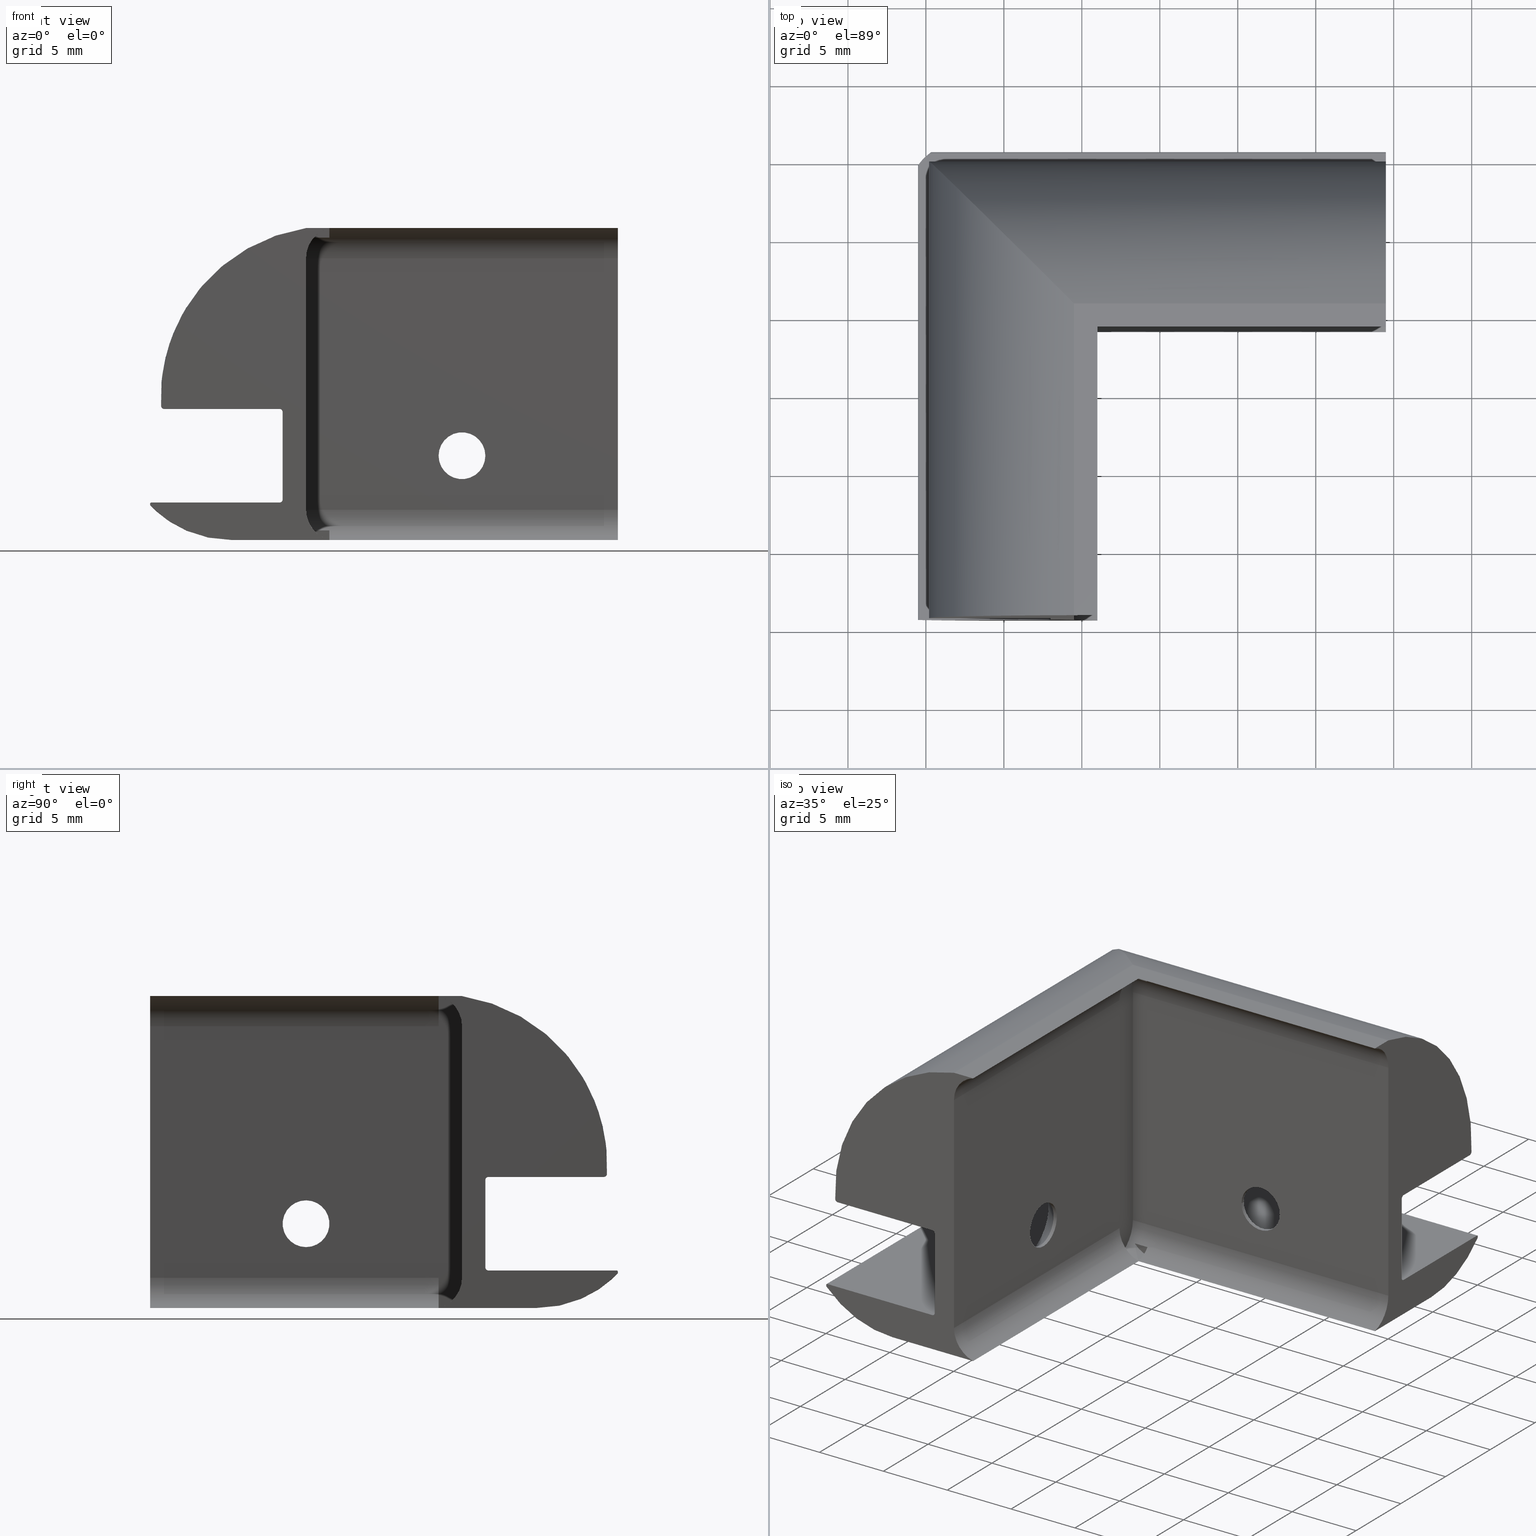
[diagram: canonical four-view strip — front | top / right | iso, engineering-drawing reading convention]
A machine part, canonical four-view strip (front | top / right | iso — engineering-drawing reading convention). The complete STEP part file that produces these views, byte-faithful:
ISO-10303-21;
HEADER;
/* Generated by software containing ST-Developer
 * from STEP Tools, Inc. (www.steptools.com) 
 */

FILE_DESCRIPTION(
/* description */ ('Translator using VaultInventorServer'),
/* implementation_level */ '2;1');

FILE_NAME(
/* name */ 
'C:\\DIERRE19\\Designs\\Storico\\_LIBRERIA BOLOGNA\\GIUNZIONI\\GIUNZ. 
, TAPPI E COLL. Q.20\\DGIPD0000002 (XF31110G)_A.stp',
/* time_stamp */ '2021-02-09T14:49:22+01:00',
/* author */ ('Dario D.'),
/* organization */ (''),
/* preprocessor_version */ 'ST-DEVELOPER v17.2',
/* originating_system */ 'Autodesk Inventor 2019',
/* authorisation */ '');

FILE_SCHEMA (('AUTOMOTIVE_DESIGN { 1 0 10303 214 3 1 1 }'));
ENDSEC;

DATA;
#10=MECHANICAL_DESIGN_GEOMETRIC_PRESENTATION_REPRESENTATION('',(#13),#1460);
#11=SHAPE_REPRESENTATION_RELATIONSHIP('SRR','None',#1467,#12);
#12=ADVANCED_BREP_SHAPE_REPRESENTATION('',(#14),#1459);
#13=STYLED_ITEM('',(#1476),#14);
#14=MANIFOLD_SOLID_BREP('Solido1',#817);
#15=B_SPLINE_CURVE_WITH_KNOTS('',3,(#1331,#1332,#1333,#1334,#1335,#1336,
#1337,#1338,#1339,#1340,#1341,#1342),.UNSPECIFIED.,.F.,.F.,(4,2,2,2,2,4),
(0.,0.00150733620031036,0.00301467240062073,0.00602934480124146,0.0114441013038339,
0.0168588578064264),.UNSPECIFIED.);
#16=B_SPLINE_CURVE_WITH_KNOTS('',3,(#1351,#1352,#1353,#1354,#1355,#1356,
#1357,#1358,#1359,#1360),.UNSPECIFIED.,.F.,.F.,(4,2,2,2,4),(-0.0070205760729304,
-0.00602934480124161,-0.00301467240062081,-0.00150733620031041,0.),
 .UNSPECIFIED.);
#17=B_SPLINE_CURVE_WITH_KNOTS('',3,(#1364,#1365,#1366,#1367,#1368,#1369),
 .UNSPECIFIED.,.F.,.F.,(4,2,4),(0.717974358753996,0.730936890251236,0.782122302768263),
 .UNSPECIFIED.);
#18=B_SPLINE_CURVE_WITH_KNOTS('',3,(#1404,#1405,#1406,#1407,#1408,#1409,
#1410,#1411,#1412,#1413,#1414,#1415),.UNSPECIFIED.,.F.,.F.,(4,2,2,2,2,4),
(0.0162123690424249,0.0216270712493945,0.0270417734563641,0.0300564437959909,
0.0315637789658043,0.0330711141356176),.UNSPECIFIED.);
#19=B_SPLINE_CURVE_WITH_KNOTS('',3,(#1429,#1430,#1431,#1432,#1433,#1434,
#1435,#1436,#1437,#1438),.UNSPECIFIED.,.F.,.F.,(4,2,2,2,4),(0.0330711141356178,
0.0345784493054312,0.0360857844752445,0.0391004548148713,0.0400916553740338),
 .UNSPECIFIED.);
#20=B_SPLINE_CURVE_WITH_KNOTS('',3,(#1443,#1444,#1445,#1446),
 .UNSPECIFIED.,.F.,.F.,(4,4),(0.187371358937497,0.251127685358334),
 .UNSPECIFIED.);
#21=FACE_BOUND('',#136,.T.);
#22=FACE_BOUND('',#138,.T.);
#23=FACE_BOUND('',#141,.T.);
#24=FACE_BOUND('',#151,.T.);
#25=ELLIPSE('',#866,2.82842712474619,2.);
#26=ELLIPSE('',#868,2.82842712474619,2.);
#27=ELLIPSE('',#890,0.282842712474491,0.199999999999818);
#28=ELLIPSE('',#892,0.282842712474491,0.199999999999818);
#29=ELLIPSE('',#894,15.556349186104,11.);
#30=ELLIPSE('',#896,0.282842712474489,0.199999999999818);
#31=ELLIPSE('',#901,10.1823376490863,7.2);
#32=PLANE('',#854);
#33=PLANE('',#856);
#34=PLANE('',#858);
#35=PLANE('',#860);
#36=PLANE('',#869);
#37=PLANE('',#880);
#38=PLANE('',#884);
#39=PLANE('',#885);
#40=PLANE('',#886);
#41=PLANE('',#887);
#42=PLANE('',#888);
#43=PLANE('',#898);
#44=PLANE('',#902);
#45=PLANE('',#905);
#46=PLANE('',#910);
#47=PLANE('',#911);
#48=PLANE('',#914);
#49=PLANE('',#919);
#50=PLANE('',#923);
#51=CYLINDRICAL_SURFACE('',#842,1.5);
#52=CYLINDRICAL_SURFACE('',#849,1.5);
#53=CYLINDRICAL_SURFACE('',#851,2.);
#54=CYLINDRICAL_SURFACE('',#862,2.);
#55=CYLINDRICAL_SURFACE('',#865,2.);
#56=CYLINDRICAL_SURFACE('',#867,2.);
#57=CYLINDRICAL_SURFACE('',#877,2.);
#58=CYLINDRICAL_SURFACE('',#881,2.);
#59=CYLINDRICAL_SURFACE('',#889,0.199999999999818);
#60=CYLINDRICAL_SURFACE('',#891,0.199999999999818);
#61=CYLINDRICAL_SURFACE('',#893,11.);
#62=CYLINDRICAL_SURFACE('',#895,0.199999999999818);
#63=CYLINDRICAL_SURFACE('',#897,0.08);
#64=CYLINDRICAL_SURFACE('',#899,0.08);
#65=CYLINDRICAL_SURFACE('',#900,7.2);
#66=CYLINDRICAL_SURFACE('',#903,0.2);
#67=CYLINDRICAL_SURFACE('',#906,0.2);
#68=CYLINDRICAL_SURFACE('',#908,11.);
#69=CYLINDRICAL_SURFACE('',#912,0.08);
#70=CYLINDRICAL_SURFACE('',#915,0.08);
#71=CYLINDRICAL_SURFACE('',#917,7.2);
#72=CYLINDRICAL_SURFACE('',#921,0.2);
#73=CYLINDRICAL_SURFACE('',#924,3.);
#74=FACE_OUTER_BOUND('',#118,.T.);
#75=FACE_OUTER_BOUND('',#119,.T.);
#76=FACE_OUTER_BOUND('',#120,.T.);
#77=FACE_OUTER_BOUND('',#121,.T.);
#78=FACE_OUTER_BOUND('',#122,.T.);
#79=FACE_OUTER_BOUND('',#123,.T.);
#80=FACE_OUTER_BOUND('',#124,.T.);
#81=FACE_OUTER_BOUND('',#125,.T.);
#82=FACE_OUTER_BOUND('',#126,.T.);
#83=FACE_OUTER_BOUND('',#127,.T.);
#84=FACE_OUTER_BOUND('',#128,.T.);
#85=FACE_OUTER_BOUND('',#129,.T.);
#86=FACE_OUTER_BOUND('',#130,.T.);
#87=FACE_OUTER_BOUND('',#131,.T.);
#88=FACE_OUTER_BOUND('',#132,.T.);
#89=FACE_OUTER_BOUND('',#133,.T.);
#90=FACE_OUTER_BOUND('',#134,.T.);
#91=FACE_OUTER_BOUND('',#135,.T.);
#92=FACE_OUTER_BOUND('',#137,.T.);
#93=FACE_OUTER_BOUND('',#139,.T.);
#94=FACE_OUTER_BOUND('',#140,.T.);
#95=FACE_OUTER_BOUND('',#142,.T.);
#96=FACE_OUTER_BOUND('',#143,.T.);
#97=FACE_OUTER_BOUND('',#144,.T.);
#98=FACE_OUTER_BOUND('',#145,.T.);
#99=FACE_OUTER_BOUND('',#146,.T.);
#100=FACE_OUTER_BOUND('',#147,.T.);
#101=FACE_OUTER_BOUND('',#148,.T.);
#102=FACE_OUTER_BOUND('',#149,.T.);
#103=FACE_OUTER_BOUND('',#150,.T.);
#104=FACE_OUTER_BOUND('',#152,.T.);
#105=FACE_OUTER_BOUND('',#153,.T.);
#106=FACE_OUTER_BOUND('',#154,.T.);
#107=FACE_OUTER_BOUND('',#155,.T.);
#108=FACE_OUTER_BOUND('',#156,.T.);
#109=FACE_OUTER_BOUND('',#157,.T.);
#110=FACE_OUTER_BOUND('',#158,.T.);
#111=FACE_OUTER_BOUND('',#159,.T.);
#112=FACE_OUTER_BOUND('',#160,.T.);
#113=FACE_OUTER_BOUND('',#161,.T.);
#114=FACE_OUTER_BOUND('',#162,.T.);
#115=FACE_OUTER_BOUND('',#163,.T.);
#116=FACE_OUTER_BOUND('',#164,.T.);
#117=FACE_OUTER_BOUND('',#165,.T.);
#118=EDGE_LOOP('',(#533,#534,#535,#536,#537,#538));
#119=EDGE_LOOP('',(#539,#540,#541,#542,#543));
#120=EDGE_LOOP('',(#544,#545,#546,#547,#548,#549));
#121=EDGE_LOOP('',(#550,#551,#552,#553,#554));
#122=EDGE_LOOP('',(#555,#556,#557,#558));
#123=EDGE_LOOP('',(#559,#560,#561));
#124=EDGE_LOOP('',(#562,#563,#564));
#125=EDGE_LOOP('',(#565,#566,#567));
#126=EDGE_LOOP('',(#568,#569,#570));
#127=EDGE_LOOP('',(#571,#572,#573,#574));
#128=EDGE_LOOP('',(#575,#576,#577));
#129=EDGE_LOOP('',(#578,#579,#580));
#130=EDGE_LOOP('',(#581,#582,#583,#584,#585,#586,#587,#588,#589,#590,#591,
#592,#593,#594,#595,#596));
#131=EDGE_LOOP('',(#597,#598,#599,#600,#601,#602,#603,#604));
#132=EDGE_LOOP('',(#605,#606,#607));
#133=EDGE_LOOP('',(#608,#609,#610,#611,#612,#613,#614,#615));
#134=EDGE_LOOP('',(#616,#617,#618));
#135=EDGE_LOOP('',(#619,#620,#621,#622));
#136=EDGE_LOOP('',(#623));
#137=EDGE_LOOP('',(#624,#625,#626,#627,#628,#629,#630,#631));
#138=EDGE_LOOP('',(#632));
#139=EDGE_LOOP('',(#633,#634,#635,#636));
#140=EDGE_LOOP('',(#637,#638,#639,#640));
#141=EDGE_LOOP('',(#641,#642));
#142=EDGE_LOOP('',(#643,#644,#645,#646));
#143=EDGE_LOOP('',(#647,#648,#649,#650));
#144=EDGE_LOOP('',(#651,#652,#653,#654,#655));
#145=EDGE_LOOP('',(#656,#657,#658,#659));
#146=EDGE_LOOP('',(#660,#661,#662,#663));
#147=EDGE_LOOP('',(#664,#665,#666,#667));
#148=EDGE_LOOP('',(#668,#669,#670,#671));
#149=EDGE_LOOP('',(#672,#673,#674,#675,#676));
#150=EDGE_LOOP('',(#677,#678,#679,#680));
#151=EDGE_LOOP('',(#681,#682));
#152=EDGE_LOOP('',(#683,#684,#685,#686));
#153=EDGE_LOOP('',(#687,#688,#689,#690,#691,#692));
#154=EDGE_LOOP('',(#693,#694,#695,#696));
#155=EDGE_LOOP('',(#697,#698,#699,#700));
#156=EDGE_LOOP('',(#701,#702,#703,#704,#705,#706,#707));
#157=EDGE_LOOP('',(#708,#709,#710,#711,#712,#713,#714,#715,#716,#717));
#158=EDGE_LOOP('',(#718,#719,#720,#721));
#159=EDGE_LOOP('',(#722,#723,#724,#725));
#160=EDGE_LOOP('',(#726,#727,#728,#729));
#161=EDGE_LOOP('',(#730,#731,#732,#733,#734));
#162=EDGE_LOOP('',(#735,#736,#737,#738,#739,#740,#741));
#163=EDGE_LOOP('',(#742,#743,#744,#745));
#164=EDGE_LOOP('',(#746,#747,#748,#749,#750,#751,#752,#753,#754,#755,#756,
#757,#758,#759,#760,#761));
#165=EDGE_LOOP('',(#762,#763,#764,#765,#766,#767,#768,#769,#770));
#166=LINE('',#1179,#235);
#167=LINE('',#1185,#236);
#168=LINE('',#1193,#237);
#169=LINE('',#1199,#238);
#170=LINE('',#1206,#239);
#171=LINE('',#1209,#240);
#172=LINE('',#1213,#241);
#173=LINE('',#1215,#242);
#174=LINE('',#1220,#243);
#175=LINE('',#1223,#244);
#176=LINE('',#1227,#245);
#177=LINE('',#1230,#246);
#178=LINE('',#1235,#247);
#179=LINE('',#1238,#248);
#180=LINE('',#1241,#249);
#181=LINE('',#1244,#250);
#182=LINE('',#1246,#251);
#183=LINE('',#1248,#252);
#184=LINE('',#1254,#253);
#185=LINE('',#1258,#254);
#186=LINE('',#1262,#255);
#187=LINE('',#1266,#256);
#188=LINE('',#1271,#257);
#189=LINE('',#1277,#258);
#190=LINE('',#1280,#259);
#191=LINE('',#1281,#260);
#192=LINE('',#1284,#261);
#193=LINE('',#1285,#262);
#194=LINE('',#1290,#263);
#195=LINE('',#1291,#264);
#196=LINE('',#1294,#265);
#197=LINE('',#1296,#266);
#198=LINE('',#1297,#267);
#199=LINE('',#1299,#268);
#200=LINE('',#1300,#269);
#201=LINE('',#1303,#270);
#202=LINE('',#1307,#271);
#203=LINE('',#1308,#272);
#204=LINE('',#1309,#273);
#205=LINE('',#1313,#274);
#206=LINE('',#1318,#275);
#207=LINE('',#1319,#276);
#208=LINE('',#1323,#277);
#209=LINE('',#1327,#278);
#210=LINE('',#1343,#279);
#211=LINE('',#1344,#280);
#212=LINE('',#1347,#281);
#213=LINE('',#1348,#282);
#214=LINE('',#1361,#283);
#215=LINE('',#1372,#284);
#216=LINE('',#1375,#285);
#217=LINE('',#1377,#286);
#218=LINE('',#1378,#287);
#219=LINE('',#1381,#288);
#220=LINE('',#1385,#289);
#221=LINE('',#1386,#290);
#222=LINE('',#1389,#291);
#223=LINE('',#1393,#292);
#224=LINE('',#1396,#293);
#225=LINE('',#1399,#294);
#226=LINE('',#1400,#295);
#227=LINE('',#1417,#296);
#228=LINE('',#1420,#297);
#229=LINE('',#1423,#298);
#230=LINE('',#1425,#299);
#231=LINE('',#1426,#300);
#232=LINE('',#1441,#301);
#233=LINE('',#1451,#302);
#234=LINE('',#1452,#303);
#235=VECTOR('',#933,2.125);
#236=VECTOR('',#940,1.5);
#237=VECTOR('',#949,2.125);
#238=VECTOR('',#956,1.5);
#239=VECTOR('',#963,10.);
#240=VECTOR('',#966,10.);
#241=VECTOR('',#969,10.);
#242=VECTOR('',#970,10.);
#243=VECTOR('',#975,10.);
#244=VECTOR('',#978,10.);
#245=VECTOR('',#983,10.);
#246=VECTOR('',#988,10.);
#247=VECTOR('',#993,10.);
#248=VECTOR('',#996,10.);
#249=VECTOR('',#1001,10.);
#250=VECTOR('',#1006,10.);
#251=VECTOR('',#1009,10.);
#252=VECTOR('',#1010,10.);
#253=VECTOR('',#1015,10.);
#254=VECTOR('',#1018,10.);
#255=VECTOR('',#1021,10.);
#256=VECTOR('',#1024,10.);
#257=VECTOR('',#1029,10.);
#258=VECTOR('',#1034,10.);
#259=VECTOR('',#1037,10.);
#260=VECTOR('',#1038,10.);
#261=VECTOR('',#1041,10.);
#262=VECTOR('',#1042,10.);
#263=VECTOR('',#1047,10.);
#264=VECTOR('',#1048,10.);
#265=VECTOR('',#1051,10.);
#266=VECTOR('',#1054,10.);
#267=VECTOR('',#1055,10.);
#268=VECTOR('',#1058,10.);
#269=VECTOR('',#1059,10.);
#270=VECTOR('',#1064,10.);
#271=VECTOR('',#1067,10.);
#272=VECTOR('',#1068,10.);
#273=VECTOR('',#1069,10.);
#274=VECTOR('',#1074,10.);
#275=VECTOR('',#1079,10.);
#276=VECTOR('',#1080,10.);
#277=VECTOR('',#1085,10.);
#278=VECTOR('',#1090,10.);
#279=VECTOR('',#1093,10.);
#280=VECTOR('',#1094,10.);
#281=VECTOR('',#1097,10.);
#282=VECTOR('',#1098,10.);
#283=VECTOR('',#1101,10.);
#284=VECTOR('',#1106,10.);
#285=VECTOR('',#1109,10.);
#286=VECTOR('',#1110,10.);
#287=VECTOR('',#1111,10.);
#288=VECTOR('',#1114,10.);
#289=VECTOR('',#1119,10.);
#290=VECTOR('',#1120,10.);
#291=VECTOR('',#1123,10.);
#292=VECTOR('',#1128,10.);
#293=VECTOR('',#1133,10.);
#294=VECTOR('',#1136,10.);
#295=VECTOR('',#1137,10.);
#296=VECTOR('',#1140,10.);
#297=VECTOR('',#1143,10.);
#298=VECTOR('',#1146,10.);
#299=VECTOR('',#1147,10.);
#300=VECTOR('',#1148,10.);
#301=VECTOR('',#1153,10.);
#302=VECTOR('',#1162,10.);
#303=VECTOR('',#1163,10.);
#304=CIRCLE('',#838,2.75);
#305=CIRCLE('',#839,2.75);
#306=CIRCLE('',#840,1.5);
#307=CIRCLE('',#841,1.5);
#308=CIRCLE('',#843,1.5);
#309=CIRCLE('',#845,2.75);
#310=CIRCLE('',#846,2.75);
#311=CIRCLE('',#847,1.5);
#312=CIRCLE('',#848,1.5);
#313=CIRCLE('',#850,1.5);
#314=CIRCLE('',#852,2.);
#315=CIRCLE('',#853,2.);
#316=CIRCLE('',#855,2.);
#317=CIRCLE('',#857,2.);
#318=CIRCLE('',#859,2.);
#319=CIRCLE('',#861,2.);
#320=CIRCLE('',#863,2.);
#321=CIRCLE('',#864,2.);
#322=CIRCLE('',#870,11.);
#323=CIRCLE('',#871,0.199999999999818);
#324=CIRCLE('',#872,0.199999999999818);
#325=CIRCLE('',#873,0.199999999999818);
#326=CIRCLE('',#874,0.08);
#327=CIRCLE('',#875,0.08);
#328=CIRCLE('',#876,7.2);
#329=CIRCLE('',#878,2.);
#330=CIRCLE('',#879,2.);
#331=CIRCLE('',#882,2.);
#332=CIRCLE('',#883,2.);
#333=CIRCLE('',#904,0.2);
#334=CIRCLE('',#907,0.2);
#335=CIRCLE('',#909,11.);
#336=CIRCLE('',#913,0.08);
#337=CIRCLE('',#916,0.08);
#338=CIRCLE('',#918,7.2);
#339=CIRCLE('',#920,3.);
#340=CIRCLE('',#922,0.2);
#341=VERTEX_POINT('',#1174);
#342=VERTEX_POINT('',#1175);
#343=VERTEX_POINT('',#1178);
#344=VERTEX_POINT('',#1180);
#345=VERTEX_POINT('',#1184);
#346=VERTEX_POINT('',#1188);
#347=VERTEX_POINT('',#1189);
#348=VERTEX_POINT('',#1192);
#349=VERTEX_POINT('',#1194);
#350=VERTEX_POINT('',#1198);
#351=VERTEX_POINT('',#1202);
#352=VERTEX_POINT('',#1203);
#353=VERTEX_POINT('',#1205);
#354=VERTEX_POINT('',#1207);
#355=VERTEX_POINT('',#1211);
#356=VERTEX_POINT('',#1212);
#357=VERTEX_POINT('',#1214);
#358=VERTEX_POINT('',#1218);
#359=VERTEX_POINT('',#1219);
#360=VERTEX_POINT('',#1221);
#361=VERTEX_POINT('',#1225);
#362=VERTEX_POINT('',#1232);
#363=VERTEX_POINT('',#1234);
#364=VERTEX_POINT('',#1236);
#365=VERTEX_POINT('',#1247);
#366=VERTEX_POINT('',#1249);
#367=VERTEX_POINT('',#1251);
#368=VERTEX_POINT('',#1253);
#369=VERTEX_POINT('',#1255);
#370=VERTEX_POINT('',#1257);
#371=VERTEX_POINT('',#1259);
#372=VERTEX_POINT('',#1261);
#373=VERTEX_POINT('',#1263);
#374=VERTEX_POINT('',#1265);
#375=VERTEX_POINT('',#1267);
#376=VERTEX_POINT('',#1269);
#377=VERTEX_POINT('',#1273);
#378=VERTEX_POINT('',#1274);
#379=VERTEX_POINT('',#1276);
#380=VERTEX_POINT('',#1278);
#381=VERTEX_POINT('',#1283);
#382=VERTEX_POINT('',#1287);
#383=VERTEX_POINT('',#1288);
#384=VERTEX_POINT('',#1292);
#385=VERTEX_POINT('',#1305);
#386=VERTEX_POINT('',#1306);
#387=VERTEX_POINT('',#1311);
#388=VERTEX_POINT('',#1315);
#389=VERTEX_POINT('',#1316);
#390=VERTEX_POINT('',#1321);
#391=VERTEX_POINT('',#1325);
#392=VERTEX_POINT('',#1329);
#393=VERTEX_POINT('',#1330);
#394=VERTEX_POINT('',#1346);
#395=VERTEX_POINT('',#1350);
#396=VERTEX_POINT('',#1363);
#397=VERTEX_POINT('',#1370);
#398=VERTEX_POINT('',#1374);
#399=VERTEX_POINT('',#1376);
#400=VERTEX_POINT('',#1380);
#401=VERTEX_POINT('',#1384);
#402=VERTEX_POINT('',#1388);
#403=VERTEX_POINT('',#1392);
#404=VERTEX_POINT('',#1398);
#405=VERTEX_POINT('',#1402);
#406=VERTEX_POINT('',#1403);
#407=VERTEX_POINT('',#1416);
#408=VERTEX_POINT('',#1418);
#409=VERTEX_POINT('',#1422);
#410=VERTEX_POINT('',#1424);
#411=VERTEX_POINT('',#1428);
#412=VERTEX_POINT('',#1439);
#413=VERTEX_POINT('',#1450);
#414=EDGE_CURVE('',#341,#342,#304,.T.);
#415=EDGE_CURVE('',#342,#341,#305,.T.);
#416=EDGE_CURVE('',#342,#343,#166,.T.);
#417=EDGE_CURVE('',#344,#343,#306,.T.);
#418=EDGE_CURVE('',#343,#344,#307,.T.);
#419=EDGE_CURVE('',#343,#345,#167,.T.);
#420=EDGE_CURVE('',#345,#345,#308,.T.);
#421=EDGE_CURVE('',#346,#347,#309,.T.);
#422=EDGE_CURVE('',#347,#346,#310,.T.);
#423=EDGE_CURVE('',#347,#348,#168,.T.);
#424=EDGE_CURVE('',#349,#348,#311,.T.);
#425=EDGE_CURVE('',#348,#349,#312,.T.);
#426=EDGE_CURVE('',#348,#350,#169,.T.);
#427=EDGE_CURVE('',#350,#350,#313,.T.);
#428=EDGE_CURVE('',#351,#352,#314,.T.);
#429=EDGE_CURVE('',#353,#351,#170,.T.);
#430=EDGE_CURVE('',#354,#353,#315,.T.);
#431=EDGE_CURVE('',#352,#354,#171,.T.);
#432=EDGE_CURVE('',#355,#356,#172,.T.);
#433=EDGE_CURVE('',#357,#355,#173,.T.);
#434=EDGE_CURVE('',#356,#357,#316,.T.);
#435=EDGE_CURVE('',#358,#359,#174,.T.);
#436=EDGE_CURVE('',#360,#358,#317,.T.);
#437=EDGE_CURVE('',#359,#360,#175,.T.);
#438=EDGE_CURVE('',#361,#355,#318,.T.);
#439=EDGE_CURVE('',#361,#357,#176,.T.);
#440=EDGE_CURVE('',#359,#352,#319,.T.);
#441=EDGE_CURVE('',#360,#352,#177,.T.);
#442=EDGE_CURVE('',#361,#362,#320,.T.);
#443=EDGE_CURVE('',#363,#361,#178,.T.);
#444=EDGE_CURVE('',#364,#363,#321,.T.);
#445=EDGE_CURVE('',#364,#362,#179,.T.);
#446=EDGE_CURVE('',#356,#361,#25,.T.);
#447=EDGE_CURVE('',#361,#357,#180,.T.);
#448=EDGE_CURVE('',#352,#358,#26,.T.);
#449=EDGE_CURVE('',#360,#352,#181,.T.);
#450=EDGE_CURVE('',#353,#364,#182,.T.);
#451=EDGE_CURVE('',#365,#363,#183,.T.);
#452=EDGE_CURVE('',#365,#366,#322,.T.);
#453=EDGE_CURVE('',#366,#367,#323,.T.);
#454=EDGE_CURVE('',#367,#368,#184,.T.);
#455=EDGE_CURVE('',#368,#369,#324,.T.);
#456=EDGE_CURVE('',#369,#370,#185,.T.);
#457=EDGE_CURVE('',#370,#371,#325,.T.);
#458=EDGE_CURVE('',#371,#372,#186,.T.);
#459=EDGE_CURVE('',#372,#373,#326,.T.);
#460=EDGE_CURVE('',#373,#374,#187,.T.);
#461=EDGE_CURVE('',#374,#375,#327,.T.);
#462=EDGE_CURVE('',#375,#376,#328,.T.);
#463=EDGE_CURVE('',#354,#376,#188,.T.);
#464=EDGE_CURVE('',#377,#378,#329,.T.);
#465=EDGE_CURVE('',#377,#379,#189,.T.);
#466=EDGE_CURVE('',#379,#380,#330,.T.);
#467=EDGE_CURVE('',#352,#380,#190,.T.);
#468=EDGE_CURVE('',#378,#352,#191,.T.);
#469=EDGE_CURVE('',#362,#381,#192,.T.);
#470=EDGE_CURVE('',#381,#361,#193,.T.);
#471=EDGE_CURVE('',#382,#383,#331,.T.);
#472=EDGE_CURVE('',#361,#382,#194,.T.);
#473=EDGE_CURVE('',#381,#361,#195,.T.);
#474=EDGE_CURVE('',#381,#384,#332,.T.);
#475=EDGE_CURVE('',#383,#384,#196,.T.);
#476=EDGE_CURVE('',#352,#380,#197,.T.);
#477=EDGE_CURVE('',#380,#351,#198,.T.);
#478=EDGE_CURVE('',#383,#377,#199,.T.);
#479=EDGE_CURVE('',#384,#379,#200,.T.);
#480=EDGE_CURVE('',#381,#365,#201,.T.);
#481=EDGE_CURVE('',#385,#386,#202,.T.);
#482=EDGE_CURVE('',#370,#385,#203,.T.);
#483=EDGE_CURVE('',#369,#386,#204,.T.);
#484=EDGE_CURVE('',#386,#387,#27,.T.);
#485=EDGE_CURVE('',#368,#387,#205,.T.);
#486=EDGE_CURVE('',#388,#389,#28,.T.);
#487=EDGE_CURVE('',#388,#367,#206,.T.);
#488=EDGE_CURVE('',#366,#389,#207,.T.);
#489=EDGE_CURVE('',#389,#390,#29,.T.);
#490=EDGE_CURVE('',#390,#381,#208,.T.);
#491=EDGE_CURVE('',#391,#385,#30,.T.);
#492=EDGE_CURVE('',#371,#391,#209,.T.);
#493=EDGE_CURVE('',#392,#393,#15,.T.);
#494=EDGE_CURVE('',#373,#392,#210,.T.);
#495=EDGE_CURVE('',#393,#372,#211,.T.);
#496=EDGE_CURVE('',#394,#392,#212,.T.);
#497=EDGE_CURVE('',#374,#394,#213,.T.);
#498=EDGE_CURVE('',#395,#394,#16,.T.);
#499=EDGE_CURVE('',#375,#395,#214,.T.);
#500=EDGE_CURVE('',#396,#395,#17,.T.);
#501=EDGE_CURVE('',#397,#396,#31,.T.);
#502=EDGE_CURVE('',#397,#376,#215,.T.);
#503=EDGE_CURVE('',#398,#386,#216,.T.);
#504=EDGE_CURVE('',#399,#398,#217,.T.);
#505=EDGE_CURVE('',#399,#385,#218,.T.);
#506=EDGE_CURVE('',#400,#387,#219,.T.);
#507=EDGE_CURVE('',#398,#400,#333,.T.);
#508=EDGE_CURVE('',#401,#388,#220,.T.);
#509=EDGE_CURVE('',#400,#401,#221,.T.);
#510=EDGE_CURVE('',#402,#389,#222,.T.);
#511=EDGE_CURVE('',#401,#402,#334,.T.);
#512=EDGE_CURVE('',#403,#390,#223,.T.);
#513=EDGE_CURVE('',#402,#403,#335,.T.);
#514=EDGE_CURVE('',#382,#403,#224,.T.);
#515=EDGE_CURVE('',#397,#404,#225,.T.);
#516=EDGE_CURVE('',#404,#378,#226,.T.);
#517=EDGE_CURVE('',#405,#406,#18,.T.);
#518=EDGE_CURVE('',#407,#405,#227,.T.);
#519=EDGE_CURVE('',#408,#407,#336,.T.);
#520=EDGE_CURVE('',#408,#406,#228,.T.);
#521=EDGE_CURVE('',#406,#409,#229,.T.);
#522=EDGE_CURVE('',#410,#408,#230,.T.);
#523=EDGE_CURVE('',#410,#409,#231,.T.);
#524=EDGE_CURVE('',#409,#411,#19,.T.);
#525=EDGE_CURVE('',#412,#410,#337,.T.);
#526=EDGE_CURVE('',#412,#411,#232,.T.);
#527=EDGE_CURVE('',#411,#396,#20,.T.);
#528=EDGE_CURVE('',#404,#412,#338,.T.);
#529=EDGE_CURVE('',#393,#405,#339,.T.);
#530=EDGE_CURVE('',#413,#391,#233,.T.);
#531=EDGE_CURVE('',#407,#413,#234,.T.);
#532=EDGE_CURVE('',#413,#399,#340,.T.);
#533=ORIENTED_EDGE('',*,*,#414,.F.);
#534=ORIENTED_EDGE('',*,*,#415,.F.);
#535=ORIENTED_EDGE('',*,*,#416,.T.);
#536=ORIENTED_EDGE('',*,*,#417,.F.);
#537=ORIENTED_EDGE('',*,*,#418,.F.);
#538=ORIENTED_EDGE('',*,*,#416,.F.);
#539=ORIENTED_EDGE('',*,*,#417,.T.);
#540=ORIENTED_EDGE('',*,*,#419,.T.);
#541=ORIENTED_EDGE('',*,*,#420,.F.);
#542=ORIENTED_EDGE('',*,*,#419,.F.);
#543=ORIENTED_EDGE('',*,*,#418,.T.);
#544=ORIENTED_EDGE('',*,*,#421,.F.);
#545=ORIENTED_EDGE('',*,*,#422,.F.);
#546=ORIENTED_EDGE('',*,*,#423,.T.);
#547=ORIENTED_EDGE('',*,*,#424,.F.);
#548=ORIENTED_EDGE('',*,*,#425,.F.);
#549=ORIENTED_EDGE('',*,*,#423,.F.);
#550=ORIENTED_EDGE('',*,*,#424,.T.);
#551=ORIENTED_EDGE('',*,*,#426,.T.);
#552=ORIENTED_EDGE('',*,*,#427,.F.);
#553=ORIENTED_EDGE('',*,*,#426,.F.);
#554=ORIENTED_EDGE('',*,*,#425,.T.);
#555=ORIENTED_EDGE('',*,*,#428,.F.);
#556=ORIENTED_EDGE('',*,*,#429,.F.);
#557=ORIENTED_EDGE('',*,*,#430,.F.);
#558=ORIENTED_EDGE('',*,*,#431,.F.);
#559=ORIENTED_EDGE('',*,*,#432,.F.);
#560=ORIENTED_EDGE('',*,*,#433,.F.);
#561=ORIENTED_EDGE('',*,*,#434,.F.);
#562=ORIENTED_EDGE('',*,*,#435,.F.);
#563=ORIENTED_EDGE('',*,*,#436,.F.);
#564=ORIENTED_EDGE('',*,*,#437,.F.);
#565=ORIENTED_EDGE('',*,*,#438,.F.);
#566=ORIENTED_EDGE('',*,*,#439,.T.);
#567=ORIENTED_EDGE('',*,*,#433,.T.);
#568=ORIENTED_EDGE('',*,*,#440,.F.);
#569=ORIENTED_EDGE('',*,*,#437,.T.);
#570=ORIENTED_EDGE('',*,*,#441,.T.);
#571=ORIENTED_EDGE('',*,*,#442,.F.);
#572=ORIENTED_EDGE('',*,*,#443,.F.);
#573=ORIENTED_EDGE('',*,*,#444,.F.);
#574=ORIENTED_EDGE('',*,*,#445,.T.);
#575=ORIENTED_EDGE('',*,*,#446,.F.);
#576=ORIENTED_EDGE('',*,*,#434,.T.);
#577=ORIENTED_EDGE('',*,*,#447,.F.);
#578=ORIENTED_EDGE('',*,*,#448,.F.);
#579=ORIENTED_EDGE('',*,*,#449,.F.);
#580=ORIENTED_EDGE('',*,*,#436,.T.);
#581=ORIENTED_EDGE('',*,*,#430,.T.);
#582=ORIENTED_EDGE('',*,*,#450,.T.);
#583=ORIENTED_EDGE('',*,*,#444,.T.);
#584=ORIENTED_EDGE('',*,*,#451,.F.);
#585=ORIENTED_EDGE('',*,*,#452,.T.);
#586=ORIENTED_EDGE('',*,*,#453,.T.);
#587=ORIENTED_EDGE('',*,*,#454,.T.);
#588=ORIENTED_EDGE('',*,*,#455,.T.);
#589=ORIENTED_EDGE('',*,*,#456,.T.);
#590=ORIENTED_EDGE('',*,*,#457,.T.);
#591=ORIENTED_EDGE('',*,*,#458,.T.);
#592=ORIENTED_EDGE('',*,*,#459,.T.);
#593=ORIENTED_EDGE('',*,*,#460,.T.);
#594=ORIENTED_EDGE('',*,*,#461,.T.);
#595=ORIENTED_EDGE('',*,*,#462,.T.);
#596=ORIENTED_EDGE('',*,*,#463,.F.);
#597=ORIENTED_EDGE('',*,*,#464,.F.);
#598=ORIENTED_EDGE('',*,*,#465,.T.);
#599=ORIENTED_EDGE('',*,*,#466,.T.);
#600=ORIENTED_EDGE('',*,*,#467,.F.);
#601=ORIENTED_EDGE('',*,*,#448,.T.);
#602=ORIENTED_EDGE('',*,*,#435,.T.);
#603=ORIENTED_EDGE('',*,*,#440,.T.);
#604=ORIENTED_EDGE('',*,*,#468,.F.);
#605=ORIENTED_EDGE('',*,*,#442,.T.);
#606=ORIENTED_EDGE('',*,*,#469,.T.);
#607=ORIENTED_EDGE('',*,*,#470,.T.);
#608=ORIENTED_EDGE('',*,*,#471,.F.);
#609=ORIENTED_EDGE('',*,*,#472,.F.);
#610=ORIENTED_EDGE('',*,*,#438,.T.);
#611=ORIENTED_EDGE('',*,*,#432,.T.);
#612=ORIENTED_EDGE('',*,*,#446,.T.);
#613=ORIENTED_EDGE('',*,*,#473,.F.);
#614=ORIENTED_EDGE('',*,*,#474,.T.);
#615=ORIENTED_EDGE('',*,*,#475,.F.);
#616=ORIENTED_EDGE('',*,*,#428,.T.);
#617=ORIENTED_EDGE('',*,*,#476,.T.);
#618=ORIENTED_EDGE('',*,*,#477,.T.);
#619=ORIENTED_EDGE('',*,*,#478,.F.);
#620=ORIENTED_EDGE('',*,*,#475,.T.);
#621=ORIENTED_EDGE('',*,*,#479,.T.);
#622=ORIENTED_EDGE('',*,*,#465,.F.);
#623=ORIENTED_EDGE('',*,*,#427,.T.);
#624=ORIENTED_EDGE('',*,*,#477,.F.);
#625=ORIENTED_EDGE('',*,*,#466,.F.);
#626=ORIENTED_EDGE('',*,*,#479,.F.);
#627=ORIENTED_EDGE('',*,*,#474,.F.);
#628=ORIENTED_EDGE('',*,*,#469,.F.);
#629=ORIENTED_EDGE('',*,*,#445,.F.);
#630=ORIENTED_EDGE('',*,*,#450,.F.);
#631=ORIENTED_EDGE('',*,*,#429,.T.);
#632=ORIENTED_EDGE('',*,*,#420,.T.);
#633=ORIENTED_EDGE('',*,*,#470,.F.);
#634=ORIENTED_EDGE('',*,*,#480,.T.);
#635=ORIENTED_EDGE('',*,*,#451,.T.);
#636=ORIENTED_EDGE('',*,*,#443,.T.);
#637=ORIENTED_EDGE('',*,*,#481,.F.);
#638=ORIENTED_EDGE('',*,*,#482,.F.);
#639=ORIENTED_EDGE('',*,*,#456,.F.);
#640=ORIENTED_EDGE('',*,*,#483,.T.);
#641=ORIENTED_EDGE('',*,*,#414,.T.);
#642=ORIENTED_EDGE('',*,*,#415,.T.);
#643=ORIENTED_EDGE('',*,*,#484,.F.);
#644=ORIENTED_EDGE('',*,*,#483,.F.);
#645=ORIENTED_EDGE('',*,*,#455,.F.);
#646=ORIENTED_EDGE('',*,*,#485,.T.);
#647=ORIENTED_EDGE('',*,*,#486,.F.);
#648=ORIENTED_EDGE('',*,*,#487,.T.);
#649=ORIENTED_EDGE('',*,*,#453,.F.);
#650=ORIENTED_EDGE('',*,*,#488,.T.);
#651=ORIENTED_EDGE('',*,*,#489,.F.);
#652=ORIENTED_EDGE('',*,*,#488,.F.);
#653=ORIENTED_EDGE('',*,*,#452,.F.);
#654=ORIENTED_EDGE('',*,*,#480,.F.);
#655=ORIENTED_EDGE('',*,*,#490,.F.);
#656=ORIENTED_EDGE('',*,*,#491,.F.);
#657=ORIENTED_EDGE('',*,*,#492,.F.);
#658=ORIENTED_EDGE('',*,*,#457,.F.);
#659=ORIENTED_EDGE('',*,*,#482,.T.);
#660=ORIENTED_EDGE('',*,*,#493,.F.);
#661=ORIENTED_EDGE('',*,*,#494,.F.);
#662=ORIENTED_EDGE('',*,*,#459,.F.);
#663=ORIENTED_EDGE('',*,*,#495,.F.);
#664=ORIENTED_EDGE('',*,*,#496,.F.);
#665=ORIENTED_EDGE('',*,*,#497,.F.);
#666=ORIENTED_EDGE('',*,*,#460,.F.);
#667=ORIENTED_EDGE('',*,*,#494,.T.);
#668=ORIENTED_EDGE('',*,*,#498,.F.);
#669=ORIENTED_EDGE('',*,*,#499,.F.);
#670=ORIENTED_EDGE('',*,*,#461,.F.);
#671=ORIENTED_EDGE('',*,*,#497,.T.);
#672=ORIENTED_EDGE('',*,*,#500,.F.);
#673=ORIENTED_EDGE('',*,*,#501,.F.);
#674=ORIENTED_EDGE('',*,*,#502,.T.);
#675=ORIENTED_EDGE('',*,*,#462,.F.);
#676=ORIENTED_EDGE('',*,*,#499,.T.);
#677=ORIENTED_EDGE('',*,*,#481,.T.);
#678=ORIENTED_EDGE('',*,*,#503,.F.);
#679=ORIENTED_EDGE('',*,*,#504,.F.);
#680=ORIENTED_EDGE('',*,*,#505,.T.);
#681=ORIENTED_EDGE('',*,*,#421,.T.);
#682=ORIENTED_EDGE('',*,*,#422,.T.);
#683=ORIENTED_EDGE('',*,*,#484,.T.);
#684=ORIENTED_EDGE('',*,*,#506,.F.);
#685=ORIENTED_EDGE('',*,*,#507,.F.);
#686=ORIENTED_EDGE('',*,*,#503,.T.);
#687=ORIENTED_EDGE('',*,*,#508,.F.);
#688=ORIENTED_EDGE('',*,*,#509,.F.);
#689=ORIENTED_EDGE('',*,*,#506,.T.);
#690=ORIENTED_EDGE('',*,*,#485,.F.);
#691=ORIENTED_EDGE('',*,*,#454,.F.);
#692=ORIENTED_EDGE('',*,*,#487,.F.);
#693=ORIENTED_EDGE('',*,*,#486,.T.);
#694=ORIENTED_EDGE('',*,*,#510,.F.);
#695=ORIENTED_EDGE('',*,*,#511,.F.);
#696=ORIENTED_EDGE('',*,*,#508,.T.);
#697=ORIENTED_EDGE('',*,*,#489,.T.);
#698=ORIENTED_EDGE('',*,*,#512,.F.);
#699=ORIENTED_EDGE('',*,*,#513,.F.);
#700=ORIENTED_EDGE('',*,*,#510,.T.);
#701=ORIENTED_EDGE('',*,*,#473,.T.);
#702=ORIENTED_EDGE('',*,*,#447,.T.);
#703=ORIENTED_EDGE('',*,*,#439,.F.);
#704=ORIENTED_EDGE('',*,*,#472,.T.);
#705=ORIENTED_EDGE('',*,*,#514,.T.);
#706=ORIENTED_EDGE('',*,*,#512,.T.);
#707=ORIENTED_EDGE('',*,*,#490,.T.);
#708=ORIENTED_EDGE('',*,*,#502,.F.);
#709=ORIENTED_EDGE('',*,*,#515,.T.);
#710=ORIENTED_EDGE('',*,*,#516,.T.);
#711=ORIENTED_EDGE('',*,*,#468,.T.);
#712=ORIENTED_EDGE('',*,*,#441,.F.);
#713=ORIENTED_EDGE('',*,*,#449,.T.);
#714=ORIENTED_EDGE('',*,*,#467,.T.);
#715=ORIENTED_EDGE('',*,*,#476,.F.);
#716=ORIENTED_EDGE('',*,*,#431,.T.);
#717=ORIENTED_EDGE('',*,*,#463,.T.);
#718=ORIENTED_EDGE('',*,*,#517,.F.);
#719=ORIENTED_EDGE('',*,*,#518,.F.);
#720=ORIENTED_EDGE('',*,*,#519,.F.);
#721=ORIENTED_EDGE('',*,*,#520,.T.);
#722=ORIENTED_EDGE('',*,*,#521,.F.);
#723=ORIENTED_EDGE('',*,*,#520,.F.);
#724=ORIENTED_EDGE('',*,*,#522,.F.);
#725=ORIENTED_EDGE('',*,*,#523,.T.);
#726=ORIENTED_EDGE('',*,*,#524,.F.);
#727=ORIENTED_EDGE('',*,*,#523,.F.);
#728=ORIENTED_EDGE('',*,*,#525,.F.);
#729=ORIENTED_EDGE('',*,*,#526,.T.);
#730=ORIENTED_EDGE('',*,*,#501,.T.);
#731=ORIENTED_EDGE('',*,*,#527,.F.);
#732=ORIENTED_EDGE('',*,*,#526,.F.);
#733=ORIENTED_EDGE('',*,*,#528,.F.);
#734=ORIENTED_EDGE('',*,*,#515,.F.);
#735=ORIENTED_EDGE('',*,*,#518,.T.);
#736=ORIENTED_EDGE('',*,*,#529,.F.);
#737=ORIENTED_EDGE('',*,*,#495,.T.);
#738=ORIENTED_EDGE('',*,*,#458,.F.);
#739=ORIENTED_EDGE('',*,*,#492,.T.);
#740=ORIENTED_EDGE('',*,*,#530,.F.);
#741=ORIENTED_EDGE('',*,*,#531,.F.);
#742=ORIENTED_EDGE('',*,*,#491,.T.);
#743=ORIENTED_EDGE('',*,*,#505,.F.);
#744=ORIENTED_EDGE('',*,*,#532,.F.);
#745=ORIENTED_EDGE('',*,*,#530,.T.);
#746=ORIENTED_EDGE('',*,*,#464,.T.);
#747=ORIENTED_EDGE('',*,*,#516,.F.);
#748=ORIENTED_EDGE('',*,*,#528,.T.);
#749=ORIENTED_EDGE('',*,*,#525,.T.);
#750=ORIENTED_EDGE('',*,*,#522,.T.);
#751=ORIENTED_EDGE('',*,*,#519,.T.);
#752=ORIENTED_EDGE('',*,*,#531,.T.);
#753=ORIENTED_EDGE('',*,*,#532,.T.);
#754=ORIENTED_EDGE('',*,*,#504,.T.);
#755=ORIENTED_EDGE('',*,*,#507,.T.);
#756=ORIENTED_EDGE('',*,*,#509,.T.);
#757=ORIENTED_EDGE('',*,*,#511,.T.);
#758=ORIENTED_EDGE('',*,*,#513,.T.);
#759=ORIENTED_EDGE('',*,*,#514,.F.);
#760=ORIENTED_EDGE('',*,*,#471,.T.);
#761=ORIENTED_EDGE('',*,*,#478,.T.);
#762=ORIENTED_EDGE('',*,*,#493,.T.);
#763=ORIENTED_EDGE('',*,*,#529,.T.);
#764=ORIENTED_EDGE('',*,*,#517,.T.);
#765=ORIENTED_EDGE('',*,*,#521,.T.);
#766=ORIENTED_EDGE('',*,*,#524,.T.);
#767=ORIENTED_EDGE('',*,*,#527,.T.);
#768=ORIENTED_EDGE('',*,*,#500,.T.);
#769=ORIENTED_EDGE('',*,*,#498,.T.);
#770=ORIENTED_EDGE('',*,*,#496,.T.);
#771=CONICAL_SURFACE('',#837,2.125,0.785398163397448);
#772=CONICAL_SURFACE('',#844,2.125,0.785398163397448);
#773=ADVANCED_FACE('',(#74),#771,.F.);
#774=ADVANCED_FACE('',(#75),#51,.F.);
#775=ADVANCED_FACE('',(#76),#772,.F.);
#776=ADVANCED_FACE('',(#77),#52,.F.);
#777=ADVANCED_FACE('',(#78),#53,.F.);
#778=ADVANCED_FACE('',(#79),#32,.T.);
#779=ADVANCED_FACE('',(#80),#33,.T.);
#780=ADVANCED_FACE('',(#81),#34,.F.);
#781=ADVANCED_FACE('',(#82),#35,.F.);
#782=ADVANCED_FACE('',(#83),#54,.F.);
#783=ADVANCED_FACE('',(#84),#55,.F.);
#784=ADVANCED_FACE('',(#85),#56,.F.);
#785=ADVANCED_FACE('',(#86),#36,.T.);
#786=ADVANCED_FACE('',(#87),#57,.F.);
#787=ADVANCED_FACE('',(#88),#37,.F.);
#788=ADVANCED_FACE('',(#89),#58,.F.);
#789=ADVANCED_FACE('',(#90),#38,.F.);
#790=ADVANCED_FACE('',(#91,#21),#39,.F.);
#791=ADVANCED_FACE('',(#92,#22),#40,.T.);
#792=ADVANCED_FACE('',(#93),#41,.T.);
#793=ADVANCED_FACE('',(#94,#23),#42,.T.);
#794=ADVANCED_FACE('',(#95),#59,.F.);
#795=ADVANCED_FACE('',(#96),#60,.T.);
#796=ADVANCED_FACE('',(#97),#61,.T.);
#797=ADVANCED_FACE('',(#98),#62,.F.);
#798=ADVANCED_FACE('',(#99),#63,.T.);
#799=ADVANCED_FACE('',(#100),#43,.T.);
#800=ADVANCED_FACE('',(#101),#64,.T.);
#801=ADVANCED_FACE('',(#102),#65,.T.);
#802=ADVANCED_FACE('',(#103,#24),#44,.T.);
#803=ADVANCED_FACE('',(#104),#66,.F.);
#804=ADVANCED_FACE('',(#105),#45,.T.);
#805=ADVANCED_FACE('',(#106),#67,.T.);
#806=ADVANCED_FACE('',(#107),#68,.T.);
#807=ADVANCED_FACE('',(#108),#46,.T.);
#808=ADVANCED_FACE('',(#109),#47,.F.);
#809=ADVANCED_FACE('',(#110),#69,.T.);
#810=ADVANCED_FACE('',(#111),#48,.T.);
#811=ADVANCED_FACE('',(#112),#70,.T.);
#812=ADVANCED_FACE('',(#113),#71,.T.);
#813=ADVANCED_FACE('',(#114),#49,.T.);
#814=ADVANCED_FACE('',(#115),#72,.F.);
#815=ADVANCED_FACE('',(#116),#50,.T.);
#816=ADVANCED_FACE('',(#117),#73,.T.);
#817=CLOSED_SHELL('',(#773,#774,#775,#776,#777,#778,#779,#780,#781,#782,
#783,#784,#785,#786,#787,#788,#789,#790,#791,#792,#793,#794,#795,#796,#797,
#798,#799,#800,#801,#802,#803,#804,#805,#806,#807,#808,#809,#810,#811,#812,
#813,#814,#815,#816));
#818=DERIVED_UNIT_ELEMENT(#820,1.);
#819=DERIVED_UNIT_ELEMENT(#1462,3.);
#820=(
MASS_UNIT()
NAMED_UNIT(*)
SI_UNIT($,.GRAM.)
);
#821=DERIVED_UNIT((#818,#819));
#822=MEASURE_REPRESENTATION_ITEM('density measure',
POSITIVE_RATIO_MEASURE(1.13),#821);
#823=PROPERTY_DEFINITION_REPRESENTATION(#828,#825);
#824=PROPERTY_DEFINITION_REPRESENTATION(#829,#826);
#825=REPRESENTATION('material name',(#827),#1459);
#826=REPRESENTATION('density',(#822),#1459);
#827=DESCRIPTIVE_REPRESENTATION_ITEM('NYLON','NYLON');
#828=PROPERTY_DEFINITION('material property','material name',#1469);
#829=PROPERTY_DEFINITION('material property','density of part',#1469);
#830=DATE_TIME_ROLE('creation_date');
#831=APPLIED_DATE_AND_TIME_ASSIGNMENT(#832,#830,(#1469));
#832=DATE_AND_TIME(#833,#834);
#833=CALENDAR_DATE(2012,22,10);
#834=LOCAL_TIME(23,0,0.,#835);
#835=COORDINATED_UNIVERSAL_TIME_OFFSET(0,0,.BEHIND.);
#836=AXIS2_PLACEMENT_3D('placement',#1172,#925,#926);
#837=AXIS2_PLACEMENT_3D('',#1173,#927,#928);
#838=AXIS2_PLACEMENT_3D('',#1176,#929,#930);
#839=AXIS2_PLACEMENT_3D('',#1177,#931,#932);
#840=AXIS2_PLACEMENT_3D('',#1181,#934,#935);
#841=AXIS2_PLACEMENT_3D('',#1182,#936,#937);
#842=AXIS2_PLACEMENT_3D('',#1183,#938,#939);
#843=AXIS2_PLACEMENT_3D('',#1186,#941,#942);
#844=AXIS2_PLACEMENT_3D('',#1187,#943,#944);
#845=AXIS2_PLACEMENT_3D('',#1190,#945,#946);
#846=AXIS2_PLACEMENT_3D('',#1191,#947,#948);
#847=AXIS2_PLACEMENT_3D('',#1195,#950,#951);
#848=AXIS2_PLACEMENT_3D('',#1196,#952,#953);
#849=AXIS2_PLACEMENT_3D('',#1197,#954,#955);
#850=AXIS2_PLACEMENT_3D('',#1200,#957,#958);
#851=AXIS2_PLACEMENT_3D('',#1201,#959,#960);
#852=AXIS2_PLACEMENT_3D('',#1204,#961,#962);
#853=AXIS2_PLACEMENT_3D('',#1208,#964,#965);
#854=AXIS2_PLACEMENT_3D('',#1210,#967,#968);
#855=AXIS2_PLACEMENT_3D('',#1216,#971,#972);
#856=AXIS2_PLACEMENT_3D('',#1217,#973,#974);
#857=AXIS2_PLACEMENT_3D('',#1222,#976,#977);
#858=AXIS2_PLACEMENT_3D('',#1224,#979,#980);
#859=AXIS2_PLACEMENT_3D('',#1226,#981,#982);
#860=AXIS2_PLACEMENT_3D('',#1228,#984,#985);
#861=AXIS2_PLACEMENT_3D('',#1229,#986,#987);
#862=AXIS2_PLACEMENT_3D('',#1231,#989,#990);
#863=AXIS2_PLACEMENT_3D('',#1233,#991,#992);
#864=AXIS2_PLACEMENT_3D('',#1237,#994,#995);
#865=AXIS2_PLACEMENT_3D('',#1239,#997,#998);
#866=AXIS2_PLACEMENT_3D('',#1240,#999,#1000);
#867=AXIS2_PLACEMENT_3D('',#1242,#1002,#1003);
#868=AXIS2_PLACEMENT_3D('',#1243,#1004,#1005);
#869=AXIS2_PLACEMENT_3D('',#1245,#1007,#1008);
#870=AXIS2_PLACEMENT_3D('',#1250,#1011,#1012);
#871=AXIS2_PLACEMENT_3D('',#1252,#1013,#1014);
#872=AXIS2_PLACEMENT_3D('',#1256,#1016,#1017);
#873=AXIS2_PLACEMENT_3D('',#1260,#1019,#1020);
#874=AXIS2_PLACEMENT_3D('',#1264,#1022,#1023);
#875=AXIS2_PLACEMENT_3D('',#1268,#1025,#1026);
#876=AXIS2_PLACEMENT_3D('',#1270,#1027,#1028);
#877=AXIS2_PLACEMENT_3D('',#1272,#1030,#1031);
#878=AXIS2_PLACEMENT_3D('',#1275,#1032,#1033);
#879=AXIS2_PLACEMENT_3D('',#1279,#1035,#1036);
#880=AXIS2_PLACEMENT_3D('',#1282,#1039,#1040);
#881=AXIS2_PLACEMENT_3D('',#1286,#1043,#1044);
#882=AXIS2_PLACEMENT_3D('',#1289,#1045,#1046);
#883=AXIS2_PLACEMENT_3D('',#1293,#1049,#1050);
#884=AXIS2_PLACEMENT_3D('',#1295,#1052,#1053);
#885=AXIS2_PLACEMENT_3D('',#1298,#1056,#1057);
#886=AXIS2_PLACEMENT_3D('',#1301,#1060,#1061);
#887=AXIS2_PLACEMENT_3D('',#1302,#1062,#1063);
#888=AXIS2_PLACEMENT_3D('',#1304,#1065,#1066);
#889=AXIS2_PLACEMENT_3D('',#1310,#1070,#1071);
#890=AXIS2_PLACEMENT_3D('',#1312,#1072,#1073);
#891=AXIS2_PLACEMENT_3D('',#1314,#1075,#1076);
#892=AXIS2_PLACEMENT_3D('',#1317,#1077,#1078);
#893=AXIS2_PLACEMENT_3D('',#1320,#1081,#1082);
#894=AXIS2_PLACEMENT_3D('',#1322,#1083,#1084);
#895=AXIS2_PLACEMENT_3D('',#1324,#1086,#1087);
#896=AXIS2_PLACEMENT_3D('',#1326,#1088,#1089);
#897=AXIS2_PLACEMENT_3D('',#1328,#1091,#1092);
#898=AXIS2_PLACEMENT_3D('',#1345,#1095,#1096);
#899=AXIS2_PLACEMENT_3D('',#1349,#1099,#1100);
#900=AXIS2_PLACEMENT_3D('',#1362,#1102,#1103);
#901=AXIS2_PLACEMENT_3D('',#1371,#1104,#1105);
#902=AXIS2_PLACEMENT_3D('',#1373,#1107,#1108);
#903=AXIS2_PLACEMENT_3D('',#1379,#1112,#1113);
#904=AXIS2_PLACEMENT_3D('',#1382,#1115,#1116);
#905=AXIS2_PLACEMENT_3D('',#1383,#1117,#1118);
#906=AXIS2_PLACEMENT_3D('',#1387,#1121,#1122);
#907=AXIS2_PLACEMENT_3D('',#1390,#1124,#1125);
#908=AXIS2_PLACEMENT_3D('',#1391,#1126,#1127);
#909=AXIS2_PLACEMENT_3D('',#1394,#1129,#1130);
#910=AXIS2_PLACEMENT_3D('',#1395,#1131,#1132);
#911=AXIS2_PLACEMENT_3D('',#1397,#1134,#1135);
#912=AXIS2_PLACEMENT_3D('',#1401,#1138,#1139);
#913=AXIS2_PLACEMENT_3D('',#1419,#1141,#1142);
#914=AXIS2_PLACEMENT_3D('',#1421,#1144,#1145);
#915=AXIS2_PLACEMENT_3D('',#1427,#1149,#1150);
#916=AXIS2_PLACEMENT_3D('',#1440,#1151,#1152);
#917=AXIS2_PLACEMENT_3D('',#1442,#1154,#1155);
#918=AXIS2_PLACEMENT_3D('',#1447,#1156,#1157);
#919=AXIS2_PLACEMENT_3D('',#1448,#1158,#1159);
#920=AXIS2_PLACEMENT_3D('',#1449,#1160,#1161);
#921=AXIS2_PLACEMENT_3D('',#1453,#1164,#1165);
#922=AXIS2_PLACEMENT_3D('',#1454,#1166,#1167);
#923=AXIS2_PLACEMENT_3D('',#1455,#1168,#1169);
#924=AXIS2_PLACEMENT_3D('',#1456,#1170,#1171);
#925=DIRECTION('axis',(0.,0.,1.));
#926=DIRECTION('refdir',(1.,0.,0.));
#927=DIRECTION('center_axis',(-1.,0.,-1.98254111540196E-16));
#928=DIRECTION('ref_axis',(-1.98254111540196E-16,0.,1.));
#929=DIRECTION('center_axis',(1.,0.,1.98254111540196E-16));
#930=DIRECTION('ref_axis',(-1.98254111540196E-16,0.,1.));
#931=DIRECTION('center_axis',(1.,0.,1.98254111540196E-16));
#932=DIRECTION('ref_axis',(-1.98254111540196E-16,0.,1.));
#933=DIRECTION('',(0.707106781186547,8.65956056235493E-17,0.707106781186548));
#934=DIRECTION('center_axis',(-1.,0.,-1.98254111540196E-16));
#935=DIRECTION('ref_axis',(-1.98254111540196E-16,0.,1.));
#936=DIRECTION('center_axis',(-1.,0.,-1.98254111540196E-16));
#937=DIRECTION('ref_axis',(-1.98254111540196E-16,0.,1.));
#938=DIRECTION('center_axis',(-1.,0.,-1.98254111540196E-16));
#939=DIRECTION('ref_axis',(-1.98254111540196E-16,0.,1.));
#940=DIRECTION('',(1.,0.,1.98254111540196E-16));
#941=DIRECTION('center_axis',(-1.,-4.07991605741278E-16,1.04135742796695E-32));
#942=DIRECTION('ref_axis',(-1.98254111540196E-16,0.,1.));
#943=DIRECTION('center_axis',(-3.8827471899459E-16,1.,5.947623346206E-16));
#944=DIRECTION('ref_axis',(1.,3.8827471899459E-16,1.53954118895587E-31));
#945=DIRECTION('center_axis',(3.8827471899459E-16,-1.,-5.947623346206E-16));
#946=DIRECTION('ref_axis',(1.,3.8827471899459E-16,1.53954118895587E-31));
#947=DIRECTION('center_axis',(3.8827471899459E-16,-1.,-5.947623346206E-16));
#948=DIRECTION('ref_axis',(1.,3.8827471899459E-16,1.53954118895587E-31));
#949=DIRECTION('',(0.707106781186548,-0.707106781186547,-5.07156085628118E-16));
#950=DIRECTION('center_axis',(-3.8827471899459E-16,1.,5.947623346206E-16));
#951=DIRECTION('ref_axis',(1.,3.8827471899459E-16,1.53954118895587E-31));
#952=DIRECTION('center_axis',(-3.8827471899459E-16,1.,5.947623346206E-16));
#953=DIRECTION('ref_axis',(1.,3.8827471899459E-16,1.53954118895587E-31));
#954=DIRECTION('center_axis',(-3.8827471899459E-16,1.,5.947623346206E-16));
#955=DIRECTION('ref_axis',(1.,3.8827471899459E-16,1.53954118895587E-31));
#956=DIRECTION('',(3.8827471899459E-16,-1.,-5.947623346206E-16));
#957=DIRECTION('center_axis',(-3.88578058618805E-16,1.,0.));
#958=DIRECTION('ref_axis',(1.,3.8827471899459E-16,1.53954118895587E-31));
#959=DIRECTION('center_axis',(0.,1.,0.));
#960=DIRECTION('ref_axis',(-1.,0.,-1.38777878078145E-16));
#961=DIRECTION('center_axis',(3.88578058618805E-16,-1.,0.));
#962=DIRECTION('ref_axis',(-1.,0.,-1.38777878078145E-16));
#963=DIRECTION('',(0.,1.,0.));
#964=DIRECTION('center_axis',(0.,1.,0.));
#965=DIRECTION('ref_axis',(-1.,0.,-1.38777878078145E-16));
#966=DIRECTION('',(0.,-1.,0.));
#967=DIRECTION('center_axis',(0.,-1.,0.));
#968=DIRECTION('ref_axis',(0.,0.,-1.));
#969=DIRECTION('',(-1.,-3.88578058618805E-16,0.));
#970=DIRECTION('',(0.,0.,-1.));
#971=DIRECTION('center_axis',(0.,1.,0.));
#972=DIRECTION('ref_axis',(-0.249999999999995,0.,0.968245836551856));
#973=DIRECTION('center_axis',(0.,-1.,0.));
#974=DIRECTION('ref_axis',(0.,0.,-1.));
#975=DIRECTION('',(1.,3.88578058618805E-16,0.));
#976=DIRECTION('center_axis',(0.,1.,0.));
#977=DIRECTION('ref_axis',(-1.,0.,-1.38777878078145E-16));
#978=DIRECTION('',(0.,0.,-1.));
#979=DIRECTION('center_axis',(1.,0.,0.));
#980=DIRECTION('ref_axis',(0.,0.,-1.));
#981=DIRECTION('center_axis',(-1.,0.,0.));
#982=DIRECTION('ref_axis',(-3.88578058618805E-16,1.,1.38777878078144E-16));
#983=DIRECTION('',(0.,1.,0.));
#984=DIRECTION('center_axis',(1.,0.,0.));
#985=DIRECTION('ref_axis',(0.,0.,-1.));
#986=DIRECTION('center_axis',(-1.,0.,0.));
#987=DIRECTION('ref_axis',(-9.71445146547034E-17,0.250000000000006,-0.968245836551853));
#988=DIRECTION('',(0.,-1.,0.));
#989=DIRECTION('center_axis',(0.,1.,0.));
#990=DIRECTION('ref_axis',(-0.249999999999995,0.,0.968245836551856));
#991=DIRECTION('center_axis',(3.88578058618805E-16,-1.,0.));
#992=DIRECTION('ref_axis',(-0.249999999999995,0.,0.968245836551856));
#993=DIRECTION('',(0.,1.,0.));
#994=DIRECTION('center_axis',(0.,1.,0.));
#995=DIRECTION('ref_axis',(-0.249999999999995,0.,0.968245836551856));
#996=DIRECTION('',(0.,1.,0.));
#997=DIRECTION('center_axis',(0.,1.,0.));
#998=DIRECTION('ref_axis',(-0.249999999999995,0.,0.968245836551856));
#999=DIRECTION('center_axis',(0.707106781186547,0.707106781186548,0.));
#1000=DIRECTION('ref_axis',(-0.707106781186548,0.707106781186547,4.90653893338679E-17));
#1001=DIRECTION('',(0.,1.,0.));
#1002=DIRECTION('center_axis',(0.,1.,0.));
#1003=DIRECTION('ref_axis',(-1.,0.,-1.38777878078145E-16));
#1004=DIRECTION('center_axis',(0.707106781186548,0.707106781186548,0.));
#1005=DIRECTION('ref_axis',(-0.707106781186548,0.707106781186548,-9.81307786677359E-17));
#1006=DIRECTION('',(0.,-1.,0.));
#1007=DIRECTION('center_axis',(0.,-1.,0.));
#1008=DIRECTION('ref_axis',(1.,0.,0.));
#1009=DIRECTION('',(9.9920072216282E-16,0.,1.));
#1010=DIRECTION('',(1.,0.,0.));
#1011=DIRECTION('center_axis',(0.,-1.,0.));
#1012=DIRECTION('ref_axis',(-0.153693807800557,0.,0.988118521961695));
#1013=DIRECTION('center_axis',(0.,-1.,0.));
#1014=DIRECTION('ref_axis',(-0.998791972157501,0.,-0.0491385424461257));
#1015=DIRECTION('',(1.,0.,0.));
#1016=DIRECTION('center_axis',(0.,1.,0.));
#1017=DIRECTION('ref_axis',(-1.,0.,0.));
#1018=DIRECTION('',(1.98254111540196E-16,0.,-1.));
#1019=DIRECTION('center_axis',(0.,1.,0.));
#1020=DIRECTION('ref_axis',(0.,0.,1.));
#1021=DIRECTION('',(-1.,0.,-2.70127256599803E-16));
#1022=DIRECTION('center_axis',(0.,-1.,0.));
#1023=DIRECTION('ref_axis',(0.,0.,1.));
#1024=DIRECTION('',(0.,0.,-1.));
#1025=DIRECTION('center_axis',(0.,-1.,0.));
#1026=DIRECTION('ref_axis',(-1.,0.,0.));
#1027=DIRECTION('center_axis',(0.,-1.,0.));
#1028=DIRECTION('ref_axis',(-0.719101123592413,0.,-0.694905442523031));
#1029=DIRECTION('',(-1.,0.,0.));
#1030=DIRECTION('center_axis',(-1.,-3.88578058618805E-16,0.));
#1031=DIRECTION('ref_axis',(-9.71445146547034E-17,0.250000000000006,-0.968245836551853));
#1032=DIRECTION('center_axis',(-1.,-3.70074341541719E-16,0.));
#1033=DIRECTION('ref_axis',(-9.71445146547034E-17,0.250000000000006,-0.968245836551853));
#1034=DIRECTION('',(-1.,-3.88578058618805E-16,0.));
#1035=DIRECTION('center_axis',(-1.,-3.70074341541719E-16,0.));
#1036=DIRECTION('ref_axis',(-9.25185853854318E-17,0.250000000000006,-0.968245836551853));
#1037=DIRECTION('',(-1.,-3.88578058618805E-16,0.));
#1038=DIRECTION('',(-1.,1.20024110770287E-16,0.));
#1039=DIRECTION('center_axis',(3.88578058618805E-16,-1.,0.));
#1040=DIRECTION('ref_axis',(0.,0.,1.));
#1041=DIRECTION('',(0.,0.,1.));
#1042=DIRECTION('',(1.,3.88578058618805E-16,0.));
#1043=DIRECTION('center_axis',(-1.,-3.88578058618805E-16,0.));
#1044=DIRECTION('ref_axis',(-3.88578058618805E-16,1.,1.38777878078144E-16));
#1045=DIRECTION('center_axis',(-1.,-3.70074341541719E-16,0.));
#1046=DIRECTION('ref_axis',(-3.88578058618805E-16,1.,1.38777878078144E-16));
#1047=DIRECTION('',(1.,-1.20024110770287E-16,0.));
#1048=DIRECTION('',(1.,3.88578058618805E-16,0.));
#1049=DIRECTION('center_axis',(-1.,-3.70074341541719E-16,0.));
#1050=DIRECTION('ref_axis',(-3.70074341541719E-16,1.,1.38777878078144E-16));
#1051=DIRECTION('',(-1.,-3.88578058618805E-16,0.));
#1052=DIRECTION('center_axis',(3.88578058618805E-16,-1.,0.));
#1053=DIRECTION('ref_axis',(0.,0.,1.));
#1054=DIRECTION('',(-1.,-3.88578058618805E-16,0.));
#1055=DIRECTION('',(0.,0.,1.));
#1056=DIRECTION('center_axis',(-3.88578058618805E-16,1.,0.));
#1057=DIRECTION('ref_axis',(0.,0.,-1.));
#1058=DIRECTION('',(0.,0.,-1.));
#1059=DIRECTION('',(0.,0.,-1.));
#1060=DIRECTION('center_axis',(1.,4.07991605741278E-16,-1.04135742796695E-32));
#1061=DIRECTION('ref_axis',(-1.04135742796695E-32,0.,-1.));
#1062=DIRECTION('center_axis',(0.,0.,1.));
#1063=DIRECTION('ref_axis',(1.,0.,0.));
#1064=DIRECTION('',(0.,-1.,0.));
#1065=DIRECTION('center_axis',(-1.,0.,-1.98254111540196E-16));
#1066=DIRECTION('ref_axis',(-1.98254111540196E-16,0.,1.));
#1067=DIRECTION('',(-1.98254111540196E-16,-5.947623346206E-16,1.));
#1068=DIRECTION('',(0.,1.,0.));
#1069=DIRECTION('',(0.,1.,0.));
#1070=DIRECTION('center_axis',(0.,1.,0.));
#1071=DIRECTION('ref_axis',(-1.,0.,0.));
#1072=DIRECTION('center_axis',(-0.707106781186871,-0.707106781186224,0.));
#1073=DIRECTION('ref_axis',(-0.707106781186224,0.707106781186871,0.));
#1074=DIRECTION('',(0.,1.,0.));
#1075=DIRECTION('center_axis',(0.,1.,0.));
#1076=DIRECTION('ref_axis',(-0.998791972157501,0.,-0.0491385424461257));
#1077=DIRECTION('center_axis',(0.707106781186871,0.707106781186224,0.));
#1078=DIRECTION('ref_axis',(-0.707106781186224,0.707106781186871,0.));
#1079=DIRECTION('',(0.,-1.,0.));
#1080=DIRECTION('',(0.,1.,0.));
#1081=DIRECTION('center_axis',(0.,1.,0.));
#1082=DIRECTION('ref_axis',(-0.153693807800557,0.,0.988118521961695));
#1083=DIRECTION('center_axis',(0.707106781186547,0.707106781186548,0.));
#1084=DIRECTION('ref_axis',(-0.707106781186548,0.707106781186547,-1.78419597577702E-17));
#1085=DIRECTION('',(0.,-1.,0.));
#1086=DIRECTION('center_axis',(0.,1.,0.));
#1087=DIRECTION('ref_axis',(0.,0.,1.));
#1088=DIRECTION('center_axis',(-0.707106781186865,-0.70710678118623,0.));
#1089=DIRECTION('ref_axis',(0.70710678118623,-0.707106781186866,0.));
#1090=DIRECTION('',(0.,1.,0.));
#1091=DIRECTION('center_axis',(0.,1.,0.));
#1092=DIRECTION('ref_axis',(0.,0.,1.));
#1093=DIRECTION('',(0.,1.,0.));
#1094=DIRECTION('',(0.,-1.,0.));
#1095=DIRECTION('center_axis',(-1.,0.,0.));
#1096=DIRECTION('ref_axis',(0.,0.,1.));
#1097=DIRECTION('',(0.,0.,1.));
#1098=DIRECTION('',(0.,1.,0.));
#1099=DIRECTION('center_axis',(0.,1.,0.));
#1100=DIRECTION('ref_axis',(-1.,0.,0.));
#1101=DIRECTION('',(0.,1.,0.));
#1102=DIRECTION('center_axis',(0.,1.,0.));
#1103=DIRECTION('ref_axis',(-0.719101123592413,0.,-0.694905442523031));
#1104=DIRECTION('center_axis',(0.707106781186547,0.707106781186548,0.));
#1105=DIRECTION('ref_axis',(-0.707106781186548,0.707106781186547,-5.45170992598533E-17));
#1106=DIRECTION('',(0.,-1.,0.));
#1107=DIRECTION('center_axis',(-3.8827471899459E-16,1.,5.947623346206E-16));
#1108=DIRECTION('ref_axis',(-2.20106279358534E-31,5.947623346206E-16,-1.));
#1109=DIRECTION('',(-1.,-3.8827471899459E-16,0.));
#1110=DIRECTION('',(2.20106279358534E-31,-5.947623346206E-16,1.));
#1111=DIRECTION('',(-1.,-3.8827471899459E-16,0.));
#1112=DIRECTION('center_axis',(-1.,-3.8827471899459E-16,0.));
#1113=DIRECTION('ref_axis',(1.07767883226914E-30,-2.77555756156289E-15,
-1.));
#1114=DIRECTION('',(-1.,-3.8827471899459E-16,0.));
#1115=DIRECTION('center_axis',(-1.,-3.70074341541719E-16,0.));
#1116=DIRECTION('ref_axis',(1.07767883226914E-30,-2.77555756156289E-15,
-1.));
#1117=DIRECTION('center_axis',(-2.33127168544476E-31,6.00418098680599E-16,
-1.));
#1118=DIRECTION('ref_axis',(3.70074341541719E-16,-1.,-6.00418098680599E-16));
#1119=DIRECTION('',(-1.,-3.8827471899459E-16,0.));
#1120=DIRECTION('',(-3.70074341541719E-16,1.,6.00418098680599E-16));
#1121=DIRECTION('center_axis',(-1.,-3.8827471899459E-16,0.));
#1122=DIRECTION('ref_axis',(0.,0.,-1.));
#1123=DIRECTION('',(-1.,-3.8827471899459E-16,0.));
#1124=DIRECTION('center_axis',(1.,3.70074341541719E-16,0.));
#1125=DIRECTION('ref_axis',(0.,0.,-1.));
#1126=DIRECTION('center_axis',(-1.,-3.8827471899459E-16,0.));
#1127=DIRECTION('ref_axis',(-3.87805672323531E-16,0.998791972157564,-0.0491385424448411));
#1128=DIRECTION('',(-1.,-3.8827471899459E-16,0.));
#1129=DIRECTION('center_axis',(1.,3.70074341541719E-16,0.));
#1130=DIRECTION('ref_axis',(-3.87805672323531E-16,0.998791972157564,-0.0491385424448411));
#1131=DIRECTION('center_axis',(0.,0.,1.));
#1132=DIRECTION('ref_axis',(1.,0.,0.));
#1133=DIRECTION('',(-3.70074341541719E-16,1.,0.));
#1134=DIRECTION('center_axis',(0.,0.,1.));
#1135=DIRECTION('ref_axis',(1.,0.,0.));
#1136=DIRECTION('',(1.,3.8827471899459E-16,0.));
#1137=DIRECTION('',(3.70074341541719E-16,-1.,0.));
#1138=DIRECTION('center_axis',(-1.,-3.8827471899459E-16,0.));
#1139=DIRECTION('ref_axis',(-3.8827471899459E-16,1.,0.));
#1140=DIRECTION('',(-1.,-3.8827471899459E-16,0.));
#1141=DIRECTION('center_axis',(1.,3.70074341541719E-16,0.));
#1142=DIRECTION('ref_axis',(-3.8827471899459E-16,1.,0.));
#1143=DIRECTION('',(-1.,-3.8827471899459E-16,0.));
#1144=DIRECTION('center_axis',(-3.8827471899459E-16,1.,-3.27853621346862E-14));
#1145=DIRECTION('ref_axis',(1.21330213042008E-29,-3.27853621346862E-14,
-1.));
#1146=DIRECTION('',(0.,0.,-1.));
#1147=DIRECTION('',(-1.21330213042008E-29,3.27853621346862E-14,1.));
#1148=DIRECTION('',(-1.,-3.8827471899459E-16,0.));
#1149=DIRECTION('center_axis',(-1.,-3.8827471899459E-16,0.));
#1150=DIRECTION('ref_axis',(-2.79208786692728E-16,0.719101123595477,-0.69490544251986));
#1151=DIRECTION('center_axis',(1.,3.70074341541719E-16,0.));
#1152=DIRECTION('ref_axis',(-2.79208786692728E-16,0.719101123595477,-0.69490544251986));
#1153=DIRECTION('',(-1.,-3.8827471899459E-16,0.));
#1154=DIRECTION('center_axis',(-1.,-3.8827471899459E-16,0.));
#1155=DIRECTION('ref_axis',(-1.79613138711524E-31,4.62592926927149E-16,
-1.));
#1156=DIRECTION('center_axis',(1.,3.70074341541719E-16,0.));
#1157=DIRECTION('ref_axis',(-1.79613138711524E-31,4.62592926927149E-16,
-1.));
#1158=DIRECTION('center_axis',(2.09767169298129E-31,-5.40254513199588E-16,
1.));
#1159=DIRECTION('ref_axis',(-3.70074341541719E-16,1.,5.40254513199588E-16));
#1160=DIRECTION('center_axis',(-2.09767169298129E-31,5.40254513199588E-16,
-1.));
#1161=DIRECTION('ref_axis',(3.70074341541719E-16,-1.,0.));
#1162=DIRECTION('',(-1.,-3.8827471899459E-16,0.));
#1163=DIRECTION('',(3.70074341541719E-16,-1.,-5.40254513199588E-16));
#1164=DIRECTION('center_axis',(-1.,-3.8827471899459E-16,0.));
#1165=DIRECTION('ref_axis',(-3.8827471899459E-16,1.,0.));
#1166=DIRECTION('center_axis',(-1.,-3.70074341541719E-16,0.));
#1167=DIRECTION('ref_axis',(-3.8827471899459E-16,1.,0.));
#1168=DIRECTION('center_axis',(1.,3.70074341541719E-16,0.));
#1169=DIRECTION('ref_axis',(-3.70074341541719E-16,1.,0.));
#1170=DIRECTION('center_axis',(0.,0.,1.));
#1171=DIRECTION('ref_axis',(3.70074341541719E-16,-1.,0.));
#1172=CARTESIAN_POINT('',(0.,0.,0.));
#1173=CARTESIAN_POINT('Origin',(3.62500000004446,0.75,-4.60000000000001));
#1174=CARTESIAN_POINT('',(3.00000000004446,0.75,-1.85000000000001));
#1175=CARTESIAN_POINT('',(3.00000000004446,0.749999999999999,-7.35000000000001));
#1176=CARTESIAN_POINT('Origin',(3.00000000004446,0.75,-4.60000000000001));
#1177=CARTESIAN_POINT('Origin',(3.00000000004446,0.75,-4.60000000000001));
#1178=CARTESIAN_POINT('',(4.25000000004446,0.749999999999999,-6.10000000000001));
#1179=CARTESIAN_POINT('',(3.62500000004446,0.749999999999999,-6.72500000000001));
#1180=CARTESIAN_POINT('',(4.25000000004446,0.75,-3.10000000000001));
#1181=CARTESIAN_POINT('Origin',(4.25000000004446,0.75,-4.60000000000001));
#1182=CARTESIAN_POINT('Origin',(4.25000000004446,0.75,-4.60000000000001));
#1183=CARTESIAN_POINT('Origin',(49.9048406489651,0.75,-4.6));
#1184=CARTESIAN_POINT('',(4.49999999999999,0.749999999999999,-6.10000000000001));
#1185=CARTESIAN_POINT('',(49.9048406489651,0.749999999999999,-6.1));
#1186=CARTESIAN_POINT('Origin',(4.49999999999999,0.75,-4.60000000000001));
#1187=CARTESIAN_POINT('Origin',(14.5,11.6249885776832,-4.60000000000031));
#1188=CARTESIAN_POINT('',(17.25,12.2499885776832,-4.60000000000031));
#1189=CARTESIAN_POINT('',(11.75,12.2499885776832,-4.60000000000031));
#1190=CARTESIAN_POINT('Origin',(14.5,12.2499885776832,-4.60000000000031));
#1191=CARTESIAN_POINT('Origin',(14.5,12.2499885776832,-4.60000000000031));
#1192=CARTESIAN_POINT('',(13.,10.9999885776832,-4.60000000000031));
#1193=CARTESIAN_POINT('',(12.375,11.6249885776832,-4.60000000000031));
#1194=CARTESIAN_POINT('',(16.,10.9999885776832,-4.60000000000031));
#1195=CARTESIAN_POINT('Origin',(14.5,10.9999885776832,-4.60000000000031));
#1196=CARTESIAN_POINT('Origin',(14.5,10.9999885776832,-4.60000000000031));
#1197=CARTESIAN_POINT('Origin',(14.5,-34.6548520712374,-4.60000000000034));
#1198=CARTESIAN_POINT('',(13.,10.75,-4.60000000000031));
#1199=CARTESIAN_POINT('',(13.,-34.6548520712374,-4.60000000000034));
#1200=CARTESIAN_POINT('Origin',(14.5,10.75,-4.60000000000031));
#1201=CARTESIAN_POINT('Origin',(6.49999999999999,-9.25,-8.06350832689629));
#1202=CARTESIAN_POINT('',(4.49999999999999,9.24999999999999,-8.06350832689629));
#1203=CARTESIAN_POINT('',(6.,9.25,-10.));
#1204=CARTESIAN_POINT('Origin',(6.49999999999999,9.25,-8.06350832689629));
#1205=CARTESIAN_POINT('',(4.49999999999999,-9.25,-8.06350832689629));
#1206=CARTESIAN_POINT('',(4.49999999999999,-9.25,-8.06350832689629));
#1207=CARTESIAN_POINT('',(6.,-9.25,-10.));
#1208=CARTESIAN_POINT('Origin',(6.49999999999999,-9.25,-8.06350832689629));
#1209=CARTESIAN_POINT('',(6.,9.25,-10.));
#1210=CARTESIAN_POINT('Origin',(5.30085146870367,10.25,-6.23232720139762E-16));
#1211=CARTESIAN_POINT('',(6.,10.25,9.38638398242856));
#1212=CARTESIAN_POINT('',(4.99999999999997,10.25,9.38638398242856));
#1213=CARTESIAN_POINT('',(24.5,10.25,9.38638398242857));
#1214=CARTESIAN_POINT('',(6.,10.25,10.));
#1215=CARTESIAN_POINT('',(6.,10.25,-10.));
#1216=CARTESIAN_POINT('Origin',(6.49999999999999,10.25,8.06350832689628));
#1217=CARTESIAN_POINT('Origin',(5.30085146870367,10.25,-6.23232720139762E-16));
#1218=CARTESIAN_POINT('',(4.99999999999997,10.25,-9.38638398242857));
#1219=CARTESIAN_POINT('',(6.,10.25,-9.38638398242857));
#1220=CARTESIAN_POINT('',(24.5,10.25,-9.38638398242857));
#1221=CARTESIAN_POINT('',(6.,10.25,-10.));
#1222=CARTESIAN_POINT('Origin',(6.49999999999999,10.25,-8.06350832689629));
#1223=CARTESIAN_POINT('',(6.,10.25,-10.));
#1224=CARTESIAN_POINT('Origin',(6.,-9.25,10.));
#1225=CARTESIAN_POINT('',(6.,9.25,10.));
#1226=CARTESIAN_POINT('Origin',(5.99999999999999,8.74999999999998,8.06350832689629));
#1227=CARTESIAN_POINT('',(6.,-9.25,10.));
#1228=CARTESIAN_POINT('Origin',(6.,-9.25,10.));
#1229=CARTESIAN_POINT('Origin',(5.99999999999999,8.74999999999998,-8.06350832689629));
#1230=CARTESIAN_POINT('',(5.99999999999999,-9.25,-10.));
#1231=CARTESIAN_POINT('Origin',(6.49999999999999,-9.25,8.06350832689628));
#1232=CARTESIAN_POINT('',(4.49999999999999,9.24999999999999,8.06350832689628));
#1233=CARTESIAN_POINT('Origin',(6.49999999999999,9.25,8.06350832689628));
#1234=CARTESIAN_POINT('',(6.,-9.25,10.));
#1235=CARTESIAN_POINT('',(6.,9.25,10.));
#1236=CARTESIAN_POINT('',(4.49999999999999,-9.25,8.06350832689628));
#1237=CARTESIAN_POINT('Origin',(6.49999999999999,-9.25,8.06350832689628));
#1238=CARTESIAN_POINT('',(4.49999999999999,-9.25,8.06350832689628));
#1239=CARTESIAN_POINT('Origin',(6.49999999999999,-9.25,8.06350832689628));
#1240=CARTESIAN_POINT('Origin',(6.49999999999999,8.74999999999998,8.06350832689628));
#1241=CARTESIAN_POINT('',(6.,-9.25,10.));
#1242=CARTESIAN_POINT('Origin',(6.49999999999999,-9.25,-8.06350832689629));
#1243=CARTESIAN_POINT('Origin',(6.49999999999999,8.74999999999998,-8.06350832689629));
#1244=CARTESIAN_POINT('',(5.99999999999999,-9.25,-10.));
#1245=CARTESIAN_POINT('Origin',(-6.,-9.25,0.));
#1246=CARTESIAN_POINT('',(4.49999999999999,-9.25,-4.03175416344815));
#1247=CARTESIAN_POINT('',(4.50000000000001,-9.25,9.99999999999642));
#1248=CARTESIAN_POINT('',(6.,-9.25,10.));
#1249=CARTESIAN_POINT('',(-4.79607980792638,-9.25,-1.40982770848975));
#1250=CARTESIAN_POINT('Origin',(6.19063188580613,-9.25,-0.869303741582232));
#1251=CARTESIAN_POINT('',(-4.59632141349506,-9.25,-1.60000000000035));
#1252=CARTESIAN_POINT('Origin',(-4.59632141349506,-9.25,-1.40000000000053));
#1253=CARTESIAN_POINT('',(2.80000000004465,-9.25,-1.60000000000035));
#1254=CARTESIAN_POINT('',(-1.59999999997768,-9.25,-1.60000000000035));
#1255=CARTESIAN_POINT('',(3.00000000004446,-9.25,-1.80000000000017));
#1256=CARTESIAN_POINT('Origin',(2.80000000004465,-9.25,-1.80000000000017));
#1257=CARTESIAN_POINT('',(3.00000000004446,-9.25,-7.40000000000047));
#1258=CARTESIAN_POINT('',(3.00000000004446,-9.25,-3.70000000000024));
#1259=CARTESIAN_POINT('',(2.80000000004465,-9.25,-7.60000000000029));
#1260=CARTESIAN_POINT('Origin',(2.80000000004465,-9.25,-7.40000000000047));
#1261=CARTESIAN_POINT('',(-5.41999999995509,-9.25,-7.60000000000029));
#1262=CARTESIAN_POINT('',(-5.70999999997754,-9.25,-7.60000000000029));
#1263=CARTESIAN_POINT('',(-5.49999999995509,-9.25,-7.68000000000029));
#1264=CARTESIAN_POINT('Origin',(-5.41999999995509,-9.25,-7.68000000000029));
#1265=CARTESIAN_POINT('',(-5.49999999995509,-9.25,-7.74772675076398));
#1266=CARTESIAN_POINT('',(-5.49999999995509,-9.25,-3.87386337538199));
#1267=CARTESIAN_POINT('',(-5.47752808984248,-9.25,-7.80331918616582));
#1268=CARTESIAN_POINT('Origin',(-5.41999999995509,-9.25,-7.74772675076398));
#1269=CARTESIAN_POINT('',(-0.299999999977106,-9.25,-10.));
#1270=CARTESIAN_POINT('Origin',(-0.299999999977107,-9.25,-2.8));
#1271=CARTESIAN_POINT('',(6.,-9.25,-10.));
#1272=CARTESIAN_POINT('Origin',(24.5,8.74999999999999,-8.06350832689629));
#1273=CARTESIAN_POINT('',(24.5,10.75,-8.06350832689629));
#1274=CARTESIAN_POINT('',(24.5,9.25,-10.));
#1275=CARTESIAN_POINT('Origin',(24.5,8.74999999999999,-8.06350832689629));
#1276=CARTESIAN_POINT('',(4.49999999999999,10.75,-8.06350832689629));
#1277=CARTESIAN_POINT('',(24.5,10.75,-8.06350832689629));
#1278=CARTESIAN_POINT('',(4.49999999999999,9.24999999999999,-10.));
#1279=CARTESIAN_POINT('Origin',(4.49999999999999,8.74999999999998,-8.06350832689629));
#1280=CARTESIAN_POINT('',(24.5,9.25,-10.));
#1281=CARTESIAN_POINT('',(24.5,9.25,-10.));
#1282=CARTESIAN_POINT('Origin',(24.5,9.25,-10.));
#1283=CARTESIAN_POINT('',(4.49999999999999,9.24999999999999,10.));
#1284=CARTESIAN_POINT('',(4.49999999999999,9.24999999999999,10.));
#1285=CARTESIAN_POINT('',(24.5,9.25,10.));
#1286=CARTESIAN_POINT('Origin',(24.5,8.74999999999999,8.06350832689629));
#1287=CARTESIAN_POINT('',(24.5,9.25,10.));
#1288=CARTESIAN_POINT('',(24.5,10.75,8.0635083268963));
#1289=CARTESIAN_POINT('Origin',(24.5,8.74999999999999,8.06350832689629));
#1290=CARTESIAN_POINT('',(24.5,9.25,10.));
#1291=CARTESIAN_POINT('',(24.5,9.25,10.));
#1292=CARTESIAN_POINT('',(4.49999999999999,10.75,8.0635083268963));
#1293=CARTESIAN_POINT('Origin',(4.49999999999999,8.74999999999998,8.06350832689629));
#1294=CARTESIAN_POINT('',(24.5,10.75,8.0635083268963));
#1295=CARTESIAN_POINT('Origin',(24.5,9.25,-10.));
#1296=CARTESIAN_POINT('',(24.5,9.25,-10.));
#1297=CARTESIAN_POINT('',(4.49999999999999,9.24999999999999,10.));
#1298=CARTESIAN_POINT('Origin',(24.5,10.75,8.06350832689629));
#1299=CARTESIAN_POINT('',(24.5,10.75,4.03175416344815));
#1300=CARTESIAN_POINT('',(4.49999999999999,10.75,-10.));
#1301=CARTESIAN_POINT('Origin',(4.5,9.94914853129632,-5.19360600116469E-16));
#1302=CARTESIAN_POINT('Origin',(6.69596238608257,8.55403761391743,10.));
#1303=CARTESIAN_POINT('',(4.50000000002304,-9.25,10.));
#1304=CARTESIAN_POINT('Origin',(3.00000000004446,-9.25,-7.40000000000047));
#1305=CARTESIAN_POINT('',(3.00000000004446,12.2499885776832,-7.40000000000047));
#1306=CARTESIAN_POINT('',(3.00000000004446,12.2499885776832,-1.80000000000017));
#1307=CARTESIAN_POINT('',(3.00000000004446,12.2499885776832,-4.60000000000034));
#1308=CARTESIAN_POINT('',(3.00000000004446,-9.25,-7.40000000000047));
#1309=CARTESIAN_POINT('',(3.00000000004446,-9.25,-1.80000000000017));
#1310=CARTESIAN_POINT('Origin',(2.80000000004465,-9.25,-1.80000000000017));
#1311=CARTESIAN_POINT('',(2.80000000004465,12.4499885776832,-1.60000000000035));
#1312=CARTESIAN_POINT('Origin',(2.80000000004465,12.4499885776832,-1.80000000000017));
#1313=CARTESIAN_POINT('',(2.80000000004465,-9.25,-1.60000000000035));
#1314=CARTESIAN_POINT('Origin',(-4.59632141349506,-9.25,-1.40000000000053));
#1315=CARTESIAN_POINT('',(-4.59632141349506,19.8463214135177,-1.60000000000021));
#1316=CARTESIAN_POINT('',(-4.79607980792637,20.0460798079492,-1.40982770848975));
#1317=CARTESIAN_POINT('Origin',(-4.59632141349506,19.8463214135177,-1.40000000000053));
#1318=CARTESIAN_POINT('',(-4.59632141349506,-9.25,-1.60000000000023));
#1319=CARTESIAN_POINT('',(-4.79607980792638,-9.25,-1.40982770848975));
#1320=CARTESIAN_POINT('Origin',(6.19063188580613,-9.25,-0.869303741582232));
#1321=CARTESIAN_POINT('',(4.50000000000001,10.7499999999341,9.99999999999642));
#1322=CARTESIAN_POINT('Origin',(6.19063188580613,9.05936811421599,-0.869303741582232));
#1323=CARTESIAN_POINT('',(4.50000000002304,-9.25,10.));
#1324=CARTESIAN_POINT('Origin',(2.80000000004465,-9.25,-7.40000000000047));
#1325=CARTESIAN_POINT('',(2.80000000004465,12.4499885776832,-7.6000000000004));
#1326=CARTESIAN_POINT('Origin',(2.80000000004465,12.4499885776832,-7.40000000000047));
#1327=CARTESIAN_POINT('',(2.80000000004465,-9.25,-7.60000000000029));
#1328=CARTESIAN_POINT('Origin',(-5.41999999995509,-9.25,-7.68000000000029));
#1329=CARTESIAN_POINT('',(-5.49999999995509,19.9083123952454,-7.68000000000029));
#1330=CARTESIAN_POINT('',(-5.41999999995509,20.0230200225089,-7.60000000000029));
#1331=CARTESIAN_POINT('Ctrl Pts',(-5.49999999995509,19.9083123952454,-7.68000000000029));
#1332=CARTESIAN_POINT('Ctrl Pts',(-5.49999999995509,19.9083123952454,-7.67497554599926));
#1333=CARTESIAN_POINT('Ctrl Pts',(-5.49952081999237,19.9090353931666,-7.66999167442369));
#1334=CARTESIAN_POINT('Ctrl Pts',(-5.49771623845978,19.9117509272567,-7.66040245356016));
#1335=CARTESIAN_POINT('Ctrl Pts',(-5.49638474094148,19.9137528009855,-7.65580089934446));
#1336=CARTESIAN_POINT('Ctrl Pts',(-5.49148062456515,19.9210942900657,-7.64288801016734));
#1337=CARTESIAN_POINT('Ctrl Pts',(-5.48690847605347,19.9279017336667,-7.63552884131442));
#1338=CARTESIAN_POINT('Ctrl Pts',(-5.473960325653,19.9469795724264,-7.619470059056));
#1339=CARTESIAN_POINT('Ctrl Pts',(-5.46376383643246,19.9617889831137,-7.61198502621711));
#1340=CARTESIAN_POINT('Ctrl Pts',(-5.44212412637061,19.9925218450163,-7.60221107378359));
#1341=CARTESIAN_POINT('Ctrl Pts',(-5.43066719072854,20.0084603439133,-7.60000000000029));
#1342=CARTESIAN_POINT('Ctrl Pts',(-5.41999999995509,20.0230200225089,-7.60000000000029));
#1343=CARTESIAN_POINT('',(-5.49999999995509,-9.25,-7.68000000000029));
#1344=CARTESIAN_POINT('',(-5.41999999995509,-9.25,-7.60000000000041));
#1345=CARTESIAN_POINT('Origin',(-5.49999999995509,-9.25,-7.74772675076398));
#1346=CARTESIAN_POINT('',(-5.49999999995509,19.9083123952454,-7.74772675076398));
#1347=CARTESIAN_POINT('',(-5.49999999995509,19.9083123952454,0.));
#1348=CARTESIAN_POINT('',(-5.49999999995509,-9.25,-7.74772675076398));
#1349=CARTESIAN_POINT('Origin',(-5.41999999995509,-9.25,-7.74772675076398));
#1350=CARTESIAN_POINT('',(-5.47752808984248,19.9417016770227,-7.80331918616582));
#1351=CARTESIAN_POINT('Ctrl Pts',(-5.47752808984248,19.9417016770227,-7.80331918616582));
#1352=CARTESIAN_POINT('Ctrl Pts',(-5.47916919587815,19.9392982471763,-7.80162093900589));
#1353=CARTESIAN_POINT('Ctrl Pts',(-5.48075514777531,19.9369680636903,-7.79982949820401));
#1354=CARTESIAN_POINT('Ctrl Pts',(-5.48690847605347,19.9279017336667,-7.79219790944984));
#1355=CARTESIAN_POINT('Ctrl Pts',(-5.49148062456515,19.9210942900657,-7.78483874059692));
#1356=CARTESIAN_POINT('Ctrl Pts',(-5.49638474094148,19.9137528009855,-7.77192585141981));
#1357=CARTESIAN_POINT('Ctrl Pts',(-5.49771623845978,19.9117509272567,-7.7673242972041));
#1358=CARTESIAN_POINT('Ctrl Pts',(-5.49952081999238,19.9090353931665,-7.75773507634058));
#1359=CARTESIAN_POINT('Ctrl Pts',(-5.49999999995509,19.9083123952454,-7.75275120476501));
#1360=CARTESIAN_POINT('Ctrl Pts',(-5.49999999995509,19.9083123952454,-7.74772675076398));
#1361=CARTESIAN_POINT('',(-5.47752808984248,-9.25,-7.80331918616582));
#1362=CARTESIAN_POINT('Origin',(-0.299999999977107,-9.25,-2.8));
#1363=CARTESIAN_POINT('',(-5.12132605469869,20.3713146324053,-8.14741199778561));
#1364=CARTESIAN_POINT('Ctrl Pts',(-5.12132605469871,20.3713146324052,-8.14741199778572));
#1365=CARTESIAN_POINT('Ctrl Pts',(-5.14744319644258,20.3451973500327,-8.12386429732487));
#1366=CARTESIAN_POINT('Ctrl Pts',(-5.17293999223711,20.3187354250074,-8.10052889672122));
#1367=CARTESIAN_POINT('Ctrl Pts',(-5.29598836455031,20.1862967199082,-7.98633235109816));
#1368=CARTESIAN_POINT('Ctrl Pts',(-5.39057723616805,20.0690427947506,-7.8932975526434));
#1369=CARTESIAN_POINT('Ctrl Pts',(-5.47752808984248,19.9417016770227,-7.80331918616582));
#1370=CARTESIAN_POINT('',(-0.29999999997711,15.5499885776835,-10.));
#1371=CARTESIAN_POINT('Origin',(-0.299999999977107,15.5499885776835,-2.8));
#1372=CARTESIAN_POINT('',(-0.299999999977107,-9.25,-10.));
#1373=CARTESIAN_POINT('Origin',(24.5,12.2499885776832,-1.80000000000022));
#1374=CARTESIAN_POINT('',(24.5,12.2499885776832,-1.80000000000022));
#1375=CARTESIAN_POINT('',(24.5,12.2499885776832,-1.80000000000022));
#1376=CARTESIAN_POINT('',(24.5,12.2499885776832,-7.4000000000004));
#1377=CARTESIAN_POINT('',(24.5,12.2499885776832,-0.900000000000109));
#1378=CARTESIAN_POINT('',(24.5,12.2499885776832,-7.4000000000004));
#1379=CARTESIAN_POINT('Origin',(24.5,12.4499885776832,-1.80000000000022));
#1380=CARTESIAN_POINT('',(24.5,12.4499885776832,-1.60000000000022));
#1381=CARTESIAN_POINT('',(24.5,12.4499885776832,-1.60000000000022));
#1382=CARTESIAN_POINT('Origin',(24.5,12.4499885776832,-1.80000000000022));
#1383=CARTESIAN_POINT('Origin',(24.5,19.8463214135177,-1.60000000000021));
#1384=CARTESIAN_POINT('',(24.5,19.8463214135177,-1.60000000000021));
#1385=CARTESIAN_POINT('',(24.5,19.8463214135177,-1.60000000000021));
#1386=CARTESIAN_POINT('',(24.5,14.5481607067589,-1.60000000000022));
#1387=CARTESIAN_POINT('Origin',(24.5,19.8463214135177,-1.40000000000021));
#1388=CARTESIAN_POINT('',(24.5,20.0460798079492,-1.40982770848918));
#1389=CARTESIAN_POINT('',(24.5,20.0460798079492,-1.40982770848918));
#1390=CARTESIAN_POINT('Origin',(24.5,19.8463214135177,-1.40000000000021));
#1391=CARTESIAN_POINT('Origin',(24.5,9.059368114216,-0.869303741595928));
#1392=CARTESIAN_POINT('',(24.5,10.75,9.99999999998616));
#1393=CARTESIAN_POINT('',(24.5,10.749999999911,10.));
#1394=CARTESIAN_POINT('Origin',(24.5,9.059368114216,-0.869303741595928));
#1395=CARTESIAN_POINT('Origin',(6.69596238608257,8.55403761391743,10.));
#1396=CARTESIAN_POINT('',(24.5,21.25,10.));
#1397=CARTESIAN_POINT('Origin',(6.69596238608257,8.55403761391743,-10.));
#1398=CARTESIAN_POINT('',(24.5,15.5499885776835,-10.));
#1399=CARTESIAN_POINT('',(24.5,15.5499885776835,-10.));
#1400=CARTESIAN_POINT('',(24.5,21.25,-10.));
#1401=CARTESIAN_POINT('Origin',(24.5,20.6699885776833,-7.6800000000004));
#1402=CARTESIAN_POINT('',(-4.77303561269438,20.6699885776833,-7.6000000000004));
#1403=CARTESIAN_POINT('',(-4.65832961483935,20.7499885776833,-7.6800000000004));
#1404=CARTESIAN_POINT('Ctrl Pts',(-4.77303561269438,20.6699885776833,-7.6000000000004));
#1405=CARTESIAN_POINT('Ctrl Pts',(-4.75847614881391,20.6806557552889,-7.6000000000004));
#1406=CARTESIAN_POINT('Ctrl Pts',(-4.74253788713203,20.6921126782394,-7.60221106879544));
#1407=CARTESIAN_POINT('Ctrl Pts',(-4.71180549860193,20.7137523600947,-7.61198499508882));
#1408=CARTESIAN_POINT('Ctrl Pts',(-4.69699632452351,20.7239488336178,-7.61947000916964));
#1409=CARTESIAN_POINT('Ctrl Pts',(-4.67791874236139,20.7368970002311,-7.63552875450166));
#1410=CARTESIAN_POINT('Ctrl Pts',(-4.67111135995983,20.7414691752071,-7.64288795111519));
#1411=CARTESIAN_POINT('Ctrl Pts',(-4.66376994978566,20.7463733117679,-7.65580087524935));
#1412=CARTESIAN_POINT('Ctrl Pts',(-4.66176809996616,20.7477048132222,-7.66040244003782));
#1413=CARTESIAN_POINT('Ctrl Pts',(-4.65905260124898,20.7495093981819,-7.66999167464528));
#1414=CARTESIAN_POINT('Ctrl Pts',(-4.65832961483935,20.7499885776833,-7.67497554943435));
#1415=CARTESIAN_POINT('Ctrl Pts',(-4.65832961483935,20.7499885776833,-7.6800000000004));
#1416=CARTESIAN_POINT('',(24.5,20.6699885776833,-7.6000000000004));
#1417=CARTESIAN_POINT('',(24.5,20.6699885776833,-7.6000000000004));
#1418=CARTESIAN_POINT('',(24.5,20.7499885776833,-7.6800000000004));
#1419=CARTESIAN_POINT('Origin',(24.5,20.6699885776833,-7.6800000000004));
#1420=CARTESIAN_POINT('',(24.5,20.7499885776833,-7.6800000000004));
#1421=CARTESIAN_POINT('Origin',(24.5,20.7499885776833,-7.6800000000004));
#1422=CARTESIAN_POINT('',(-4.65832961483935,20.7499885776833,-7.74772675074143));
#1423=CARTESIAN_POINT('',(-4.65832961483896,20.7499885776835,0.));
#1424=CARTESIAN_POINT('',(24.5,20.7499885776833,-7.74772675074143));
#1425=CARTESIAN_POINT('',(24.5,20.7499885776834,-3.84000000000039));
#1426=CARTESIAN_POINT('',(24.5,20.7499885776833,-7.74772675074143));
#1427=CARTESIAN_POINT('Origin',(24.5,20.6699885776833,-7.74772675074143));
#1428=CARTESIAN_POINT('',(-4.69171840502737,20.7275166675709,-7.80331918614302));
#1429=CARTESIAN_POINT('Ctrl Pts',(-4.65832961483935,20.7499885776833,-7.74772675074143));
#1430=CARTESIAN_POINT('Ctrl Pts',(-4.65832961483935,20.7499885776833,-7.75275120130747));
#1431=CARTESIAN_POINT('Ctrl Pts',(-4.65905260124898,20.7495093981819,-7.75773507609654));
#1432=CARTESIAN_POINT('Ctrl Pts',(-4.66176809996615,20.7477048132222,-7.76732431070401));
#1433=CARTESIAN_POINT('Ctrl Pts',(-4.66376994978566,20.7463733117679,-7.77192587549248));
#1434=CARTESIAN_POINT('Ctrl Pts',(-4.67111135995982,20.7414691752071,-7.78483879962664));
#1435=CARTESIAN_POINT('Ctrl Pts',(-4.67791874236139,20.7368970002311,-7.79219799624017));
#1436=CARTESIAN_POINT('Ctrl Pts',(-4.68698493688299,20.7307436734511,-7.79982955603195));
#1437=CARTESIAN_POINT('Ctrl Pts',(-4.6893150456912,20.7291577492541,-7.80162096418348));
#1438=CARTESIAN_POINT('Ctrl Pts',(-4.69171840502738,20.7275166675709,-7.80331918614301));
#1439=CARTESIAN_POINT('',(24.5,20.7275166675709,-7.80331918614302));
#1440=CARTESIAN_POINT('Origin',(24.5,20.6699885776833,-7.74772675074143));
#1441=CARTESIAN_POINT('',(24.5,20.7275166675709,-7.80331918614302));
#1442=CARTESIAN_POINT('Origin',(24.5,15.5499885776835,-2.8));
#1443=CARTESIAN_POINT('Ctrl Pts',(-4.69171840502737,20.7275166675709,-7.80331918614301));
#1444=CARTESIAN_POINT('Ctrl Pts',(-4.85053742271146,20.6190705534433,-7.91554124938657));
#1445=CARTESIAN_POINT('Ctrl Pts',(-4.99460670157824,20.498033985541,-8.03315922818996));
#1446=CARTESIAN_POINT('Ctrl Pts',(-5.12132034355965,20.3713203435596,-8.14740684849709));
#1447=CARTESIAN_POINT('Origin',(24.5,15.5499885776835,-2.8));
#1448=CARTESIAN_POINT('Origin',(24.5,12.4499885776832,-7.6000000000004));
#1449=CARTESIAN_POINT('Origin',(-3.00000000000001,18.25,-7.6000000000004));
#1450=CARTESIAN_POINT('',(24.5,12.4499885776832,-7.6000000000004));
#1451=CARTESIAN_POINT('',(24.5,12.4499885776832,-7.6000000000004));
#1452=CARTESIAN_POINT('',(24.5,10.8499942888416,-7.6000000000004));
#1453=CARTESIAN_POINT('Origin',(24.5,12.4499885776832,-7.4000000000004));
#1454=CARTESIAN_POINT('Origin',(24.5,12.4499885776832,-7.4000000000004));
#1455=CARTESIAN_POINT('Origin',(24.5,9.25,0.));
#1456=CARTESIAN_POINT('Origin',(-3.00000000000001,18.25,0.));
#1457=UNCERTAINTY_MEASURE_WITH_UNIT(LENGTH_MEASURE(0.01),#1461,
'DISTANCE_ACCURACY_VALUE',
'Maximum model space distance between geometric entities at asserted c
onnectivities');
#1458=UNCERTAINTY_MEASURE_WITH_UNIT(LENGTH_MEASURE(0.01),#1461,
'DISTANCE_ACCURACY_VALUE',
'Maximum model space distance between geometric entities at asserted c
onnectivities');
#1459=(
GEOMETRIC_REPRESENTATION_CONTEXT(3)
GLOBAL_UNCERTAINTY_ASSIGNED_CONTEXT((#1457))
GLOBAL_UNIT_ASSIGNED_CONTEXT((#1461,#1463,#1464))
REPRESENTATION_CONTEXT('','3D')
);
#1460=(
GEOMETRIC_REPRESENTATION_CONTEXT(3)
GLOBAL_UNCERTAINTY_ASSIGNED_CONTEXT((#1458))
GLOBAL_UNIT_ASSIGNED_CONTEXT((#1461,#1463,#1464))
REPRESENTATION_CONTEXT('','3D')
);
#1461=(
LENGTH_UNIT()
NAMED_UNIT(*)
SI_UNIT(.MILLI.,.METRE.)
);
#1462=(
LENGTH_UNIT()
NAMED_UNIT(*)
SI_UNIT(.CENTI.,.METRE.)
);
#1463=(
NAMED_UNIT(*)
PLANE_ANGLE_UNIT()
SI_UNIT($,.RADIAN.)
);
#1464=(
NAMED_UNIT(*)
SI_UNIT($,.STERADIAN.)
SOLID_ANGLE_UNIT()
);
#1465=SHAPE_DEFINITION_REPRESENTATION(#1466,#1467);
#1466=PRODUCT_DEFINITION_SHAPE('',$,#1469);
#1467=SHAPE_REPRESENTATION('',(#836),#1459);
#1468=PRODUCT_DEFINITION_CONTEXT('part definition',#1473,'design');
#1469=PRODUCT_DEFINITION('DGIPD0000002 (XF31110G)',
'DGIPD0000002 (XF31110G)',#1470,#1468);
#1470=PRODUCT_DEFINITION_FORMATION('A',$,#1475);
#1471=PRODUCT_RELATED_PRODUCT_CATEGORY('DGIPD0000002 (XF31110G)',
'DGIPD0000002 (XF31110G)',(#1475));
#1472=APPLICATION_PROTOCOL_DEFINITION('international standard',
'automotive_design',2009,#1473);
#1473=APPLICATION_CONTEXT(
'Core Data for Automotive Mechanical Design Process');
#1474=PRODUCT_CONTEXT('part definition',#1473,'mechanical');
#1475=PRODUCT('DGIPD0000002 (XF31110G)','DGIPD0000002 (XF31110G)',
'CORNIC.Q20-2VA.90^  S/SM./NYLON RAL.7039',(#1474));
#1476=PRESENTATION_STYLE_ASSIGNMENT((#1477));
#1477=SURFACE_STYLE_USAGE(.BOTH.,#1480);
#1478=SURFACE_STYLE_RENDERING_WITH_PROPERTIES($,#1484,(#1479));
#1479=SURFACE_STYLE_TRANSPARENT(1.);
#1480=SURFACE_SIDE_STYLE('',(#1481,#1478));
#1481=SURFACE_STYLE_FILL_AREA(#1482);
#1482=FILL_AREA_STYLE('',(#1483));
#1483=FILL_AREA_STYLE_COLOUR('',#1484);
#1484=COLOUR_RGB('',0.317647058823529,0.305882352941176,0.254901960784314);
ENDSEC;
END-ISO-10303-21;
